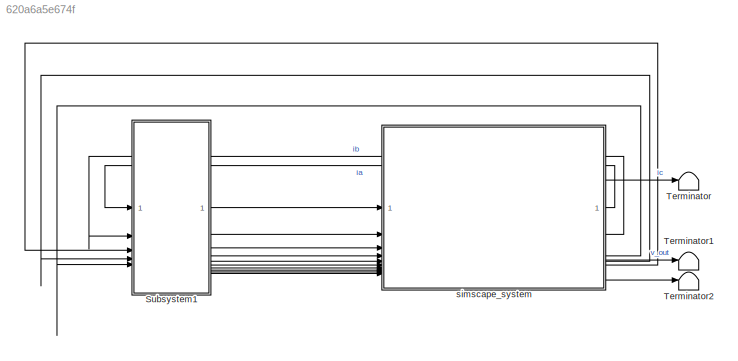
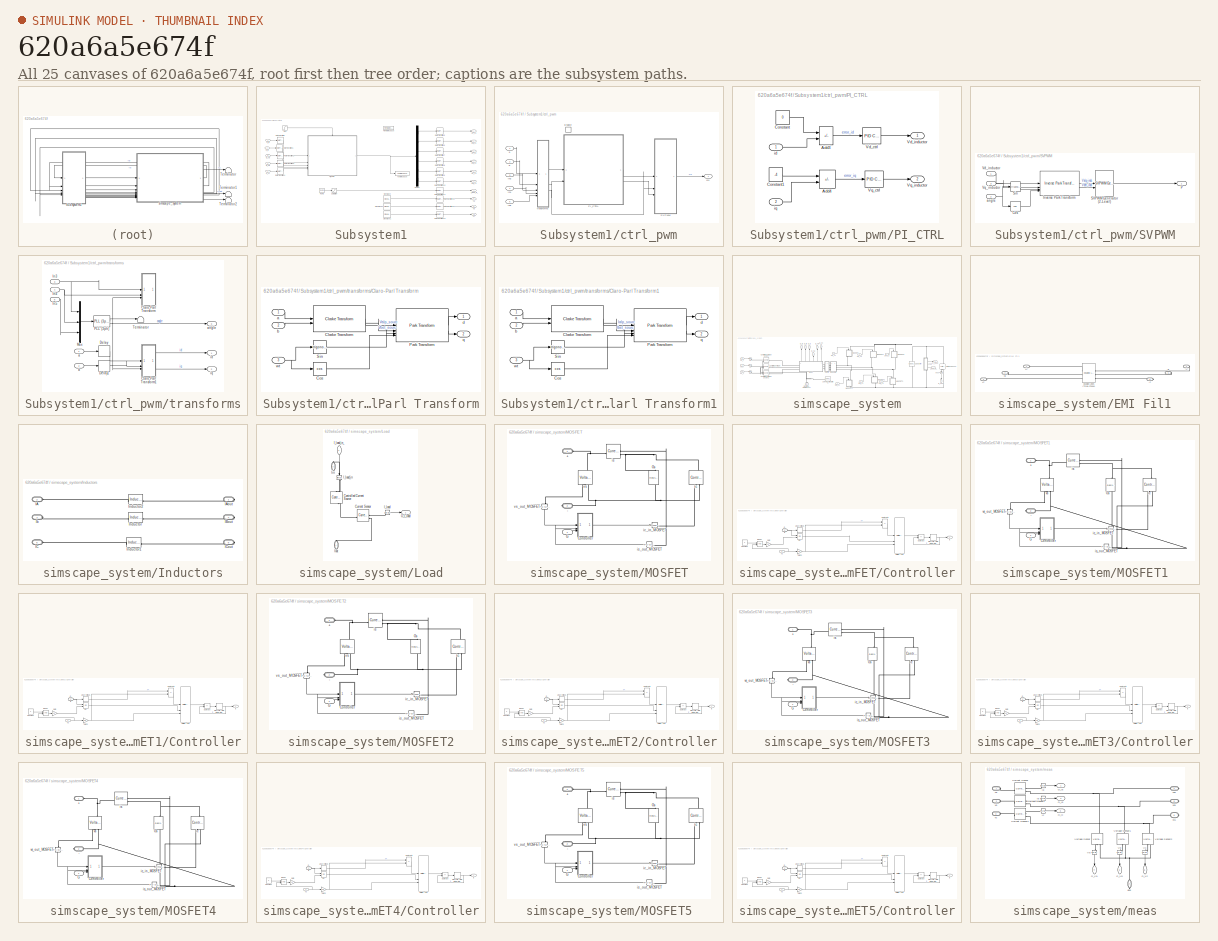
[diagram: thumbnail index - all 25 canvases of the model, root first then tree order]
MODEL slx_620a6a5e674f
KIND model
CONFIG AbsTol = auto
CONFIG EnableMultiTasking = off
CONFIG FixedStep = auto
CONFIG InitFcn = fidelity_pfc_vals;
CONFIG MaxStep = auto
CONFIG MinStep = auto
CONFIG RelTol = 1e-3
CONFIG SampleTimeConstraint = Unconstrained
CONFIG SolverName = FixedStepDiscrete
CONFIG StartTime = 0.0
CONFIG StopTime = .4
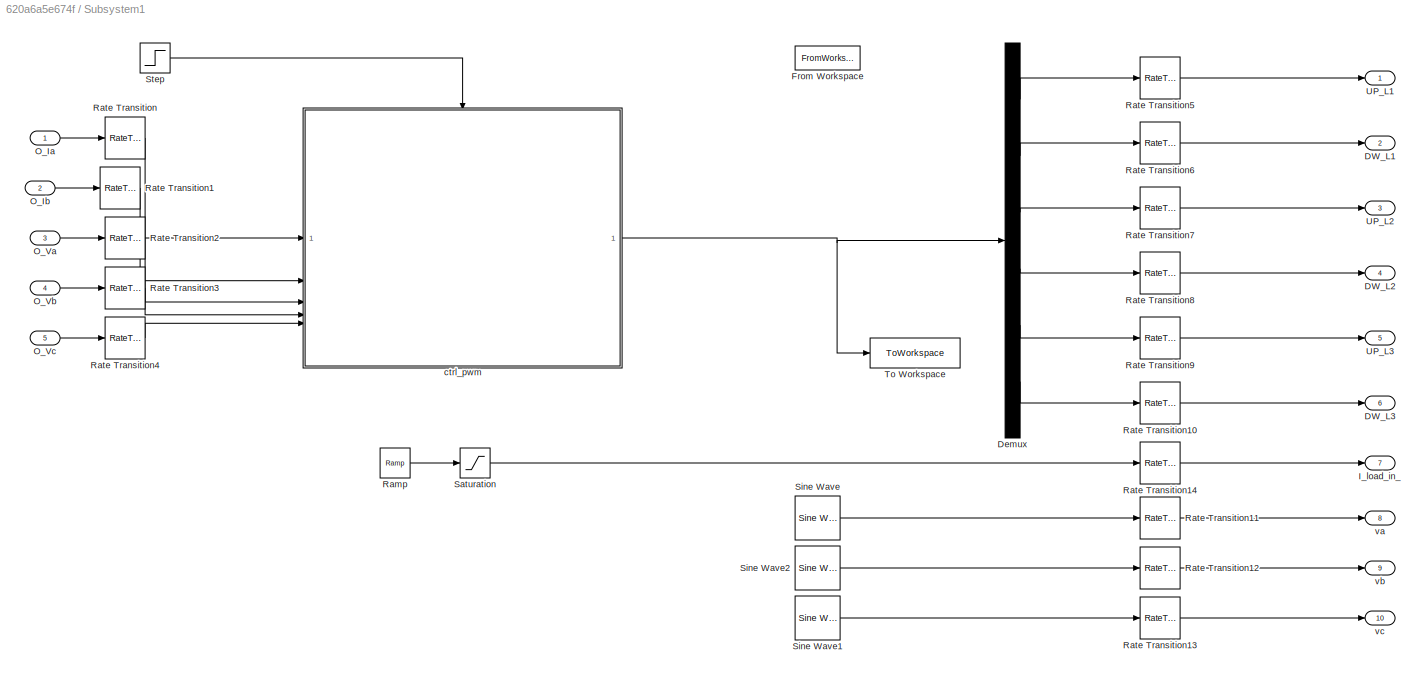
BLOCK [SubSystem] Subsystem1
BLOCK [Outport] Subsystem1/DW_L1
  Port = 2
BLOCK [Outport] Subsystem1/DW_L2
  Port = 4
BLOCK [Outport] Subsystem1/DW_L3
  Port = 6
BLOCK [Demux] Subsystem1/Demux
  Outputs = 6
BLOCK [FromWorkspace] Subsystem1/From Workspace
  Commented = on
  Interpolate = off
  OutputAfterFinalValue = Holding final value
  SampleTime = t_ss
  VariableName = pwm
  ZeroCross = off
BLOCK [Outport] Subsystem1/I_load_in_
  Port = 7
BLOCK [Inport] Subsystem1/O_Ia
BLOCK [Inport] Subsystem1/O_Ib
  Port = 2
BLOCK [Inport] Subsystem1/O_Va
  Port = 3
BLOCK [Inport] Subsystem1/O_Vb
  Port = 4
BLOCK [Inport] Subsystem1/O_Vc
  Port = 5
BLOCK [Reference] Subsystem1/Ramp  REF=simulink/Sources/Ramp
  SourceBlock = simulink/Sources/Ramp
  SourceType = Ramp
BLOCK [RateTransition] Subsystem1/Rate Transition
  OutPortSampleTime = t_ss
BLOCK [RateTransition] Subsystem1/Rate Transition1
  OutPortSampleTime = t_ss
BLOCK [RateTransition] Subsystem1/Rate Transition10
BLOCK [RateTransition] Subsystem1/Rate Transition11
BLOCK [RateTransition] Subsystem1/Rate Transition12
BLOCK [RateTransition] Subsystem1/Rate Transition13
BLOCK [RateTransition] Subsystem1/Rate Transition14
  OutPortSampleTime = t_ss
BLOCK [RateTransition] Subsystem1/Rate Transition2
  OutPortSampleTime = t_ss
BLOCK [RateTransition] Subsystem1/Rate Transition3
  OutPortSampleTime = t_ss
BLOCK [RateTransition] Subsystem1/Rate Transition4
  OutPortSampleTime = t_ss
BLOCK [RateTransition] Subsystem1/Rate Transition5
BLOCK [RateTransition] Subsystem1/Rate Transition6
BLOCK [RateTransition] Subsystem1/Rate Transition7
BLOCK [RateTransition] Subsystem1/Rate Transition8
BLOCK [RateTransition] Subsystem1/Rate Transition9
BLOCK [Saturate] Subsystem1/Saturation
  UpperLimit = 2
BLOCK [Reference] Subsystem1/Sine Wave  REF=dspsrcs4/Sine Wave
  LibrarySourceBlock = dsphdlsupportsrcs/Sine Wave
  SourceBlock = dspsrcs4/Sine Wave
  SourceType = Sine Wave
BLOCK [Reference] Subsystem1/Sine Wave1  REF=dspsrcs4/Sine Wave
  LibrarySourceBlock = dsphdlsupportsrcs/Sine Wave
  SourceBlock = dspsrcs4/Sine Wave
  SourceType = Sine Wave
BLOCK [Reference] Subsystem1/Sine Wave2  REF=dspsrcs4/Sine Wave
  LibrarySourceBlock = dsphdlsupportsrcs/Sine Wave
  SourceBlock = dspsrcs4/Sine Wave
  SourceType = Sine Wave
BLOCK [Step] Subsystem1/Step
  SampleTime = 0
  Time = 2/50
BLOCK [ToWorkspace] Subsystem1/To Workspace
  FixptAsFi = on
  MaxDataPoints = inf
  SampleTime = -1
  SaveFormat = Timeseries
  VariableName = pwm
BLOCK [Outport] Subsystem1/UP_L1
BLOCK [Outport] Subsystem1/UP_L2
  Port = 3
BLOCK [Outport] Subsystem1/UP_L3
  Port = 5
BLOCK [SubSystem] Subsystem1/ctrl_pwm
BLOCK [EnablePort] Subsystem1/ctrl_pwm/Enable
BLOCK [Inport] Subsystem1/ctrl_pwm/In3
  Port = 3
BLOCK [Inport] Subsystem1/ctrl_pwm/In4
  Port = 4
BLOCK [Inport] Subsystem1/ctrl_pwm/In5
  Port = 5
BLOCK [SubSystem] Subsystem1/ctrl_pwm/PI_CTRL
BLOCK [Sum] Subsystem1/ctrl_pwm/PI_CTRL/Add3
  IconShape = rectangular
  Inputs = +-
BLOCK [Sum] Subsystem1/ctrl_pwm/PI_CTRL/Add4
  IconShape = rectangular
  Inputs = +-
BLOCK [Constant] Subsystem1/ctrl_pwm/PI_CTRL/Constant
  SampleTime = t_ss
  Value = 0
BLOCK [Constant] Subsystem1/ctrl_pwm/PI_CTRL/Constant1
  SampleTime = t_ss
  Value = -4
BLOCK [Reference] Subsystem1/ctrl_pwm/PI_CTRL/Vd_ctrl  REF=slpidlib/PID Controller
  SourceBlock = slpidlib/PID Controller
  SourceType = PID 1dof
BLOCK [Outport] Subsystem1/ctrl_pwm/PI_CTRL/Vd_inductor
BLOCK [Reference] Subsystem1/ctrl_pwm/PI_CTRL/Vq_ctrl  REF=slpidlib/PID Controller
  SourceBlock = slpidlib/PID Controller
  SourceType = PID 1dof
BLOCK [Outport] Subsystem1/ctrl_pwm/PI_CTRL/Vq_inductor
  Port = 2
BLOCK [Inport] Subsystem1/ctrl_pwm/PI_CTRL/id
BLOCK [Inport] Subsystem1/ctrl_pwm/PI_CTRL/iq
  Port = 2
BLOCK [Outport] Subsystem1/ctrl_pwm/Qs
BLOCK [SubSystem] Subsystem1/ctrl_pwm/SVPWM
BLOCK [Trigonometry] Subsystem1/ctrl_pwm/SVPWM/Cos
  Operator = cos
BLOCK [Reference] Subsystem1/ctrl_pwm/SVPWM/Inverse Park Transform  REF=mcbcontrolslib/Inverse Park Transform
  SourceBlock = mcbcontrolslib/Inverse Park Transform
  SourceType = Inverse Park Transform
BLOCK [Outport] Subsystem1/ctrl_pwm/SVPWM/P
BLOCK [Reference] Subsystem1/ctrl_pwm/SVPWM/SVPWM Generator (2-Level)  REF=spsSVPWMGenerator2LevelLib/SVPWM Generator
(2-Level)
  SourceBlock = spsSVPWMGenerator2LevelLib/SVPWM Generator\n(2-Level)
  SourceType = SVPWM Generator (2-Level)
BLOCK [Trigonometry] Subsystem1/ctrl_pwm/SVPWM/Sin
BLOCK [Inport] Subsystem1/ctrl_pwm/SVPWM/Vd_inductor
BLOCK [Inport] Subsystem1/ctrl_pwm/SVPWM/Vq_inductor
  Port = 3
BLOCK [Inport] Subsystem1/ctrl_pwm/SVPWM/angle
  Port = 2
BLOCK [Inport] Subsystem1/ctrl_pwm/a
BLOCK [Inport] Subsystem1/ctrl_pwm/b
  Port = 2
BLOCK [SubSystem] Subsystem1/ctrl_pwm/transforms
BLOCK [SubSystem] Subsystem1/ctrl_pwm/transforms/Claro-Parl Transform
  Commented = on
BLOCK [Reference] Subsystem1/ctrl_pwm/transforms/Claro-Parl Transform/Clarke Transform  REF=mcbcontrolslib/Clarke Transform
  SourceBlock = mcbcontrolslib/Clarke Transform
  SourceType = Clarke Transform
BLOCK [Trigonometry] Subsystem1/ctrl_pwm/transforms/Claro-Parl Transform/Cos
  Operator = cos
BLOCK [Reference] Subsystem1/ctrl_pwm/transforms/Claro-Parl Transform/Park Transform  REF=mcbcontrolslib/Park Transform
  SourceBlock = mcbcontrolslib/Park Transform
  SourceType = Park Transform
BLOCK [Trigonometry] Subsystem1/ctrl_pwm/transforms/Claro-Parl Transform/Sin
BLOCK [Inport] Subsystem1/ctrl_pwm/transforms/Claro-Parl Transform/a
BLOCK [Inport] Subsystem1/ctrl_pwm/transforms/Claro-Parl Transform/b
  Port = 2
BLOCK [Outport] Subsystem1/ctrl_pwm/transforms/Claro-Parl Transform/d
BLOCK [Outport] Subsystem1/ctrl_pwm/transforms/Claro-Parl Transform/q
  Port = 2
BLOCK [Inport] Subsystem1/ctrl_pwm/transforms/Claro-Parl Transform/wt
  Port = 3
BLOCK [SubSystem] Subsystem1/ctrl_pwm/transforms/Claro-Parl Transform1
BLOCK [Reference] Subsystem1/ctrl_pwm/transforms/Claro-Parl Transform1/Clarke Transform  REF=mcbcontrolslib/Clarke Transform
  SourceBlock = mcbcontrolslib/Clarke Transform
  SourceType = Clarke Transform
BLOCK [Trigonometry] Subsystem1/ctrl_pwm/transforms/Claro-Parl Transform1/Cos
  Operator = cos
BLOCK [Reference] Subsystem1/ctrl_pwm/transforms/Claro-Parl Transform1/Park Transform  REF=mcbcontrolslib/Park Transform
  SourceBlock = mcbcontrolslib/Park Transform
  SourceType = Park Transform
BLOCK [Trigonometry] Subsystem1/ctrl_pwm/transforms/Claro-Parl Transform1/Sin
BLOCK [Inport] Subsystem1/ctrl_pwm/transforms/Claro-Parl Transform1/a
BLOCK [Inport] Subsystem1/ctrl_pwm/transforms/Claro-Parl Transform1/b
  Port = 2
BLOCK [Outport] Subsystem1/ctrl_pwm/transforms/Claro-Parl Transform1/d
BLOCK [Outport] Subsystem1/ctrl_pwm/transforms/Claro-Parl Transform1/q
  Port = 2
BLOCK [Inport] Subsystem1/ctrl_pwm/transforms/Claro-Parl Transform1/wt
  Port = 3
BLOCK [Delay] Subsystem1/ctrl_pwm/transforms/Delay
  DelayLength = 1
  InputPortMap = u0
BLOCK [Delay] Subsystem1/ctrl_pwm/transforms/Delay1
  DelayLength = 1
  InputPortMap = u0
BLOCK [Inport] Subsystem1/ctrl_pwm/transforms/In3
  Port = 3
BLOCK [Inport] Subsystem1/ctrl_pwm/transforms/In4
  Port = 4
BLOCK [Inport] Subsystem1/ctrl_pwm/transforms/In5
  Port = 5
BLOCK [Mux] Subsystem1/ctrl_pwm/transforms/Mux
  DisplayOption = bar
  Inputs = 3
BLOCK [Reference] Subsystem1/ctrl_pwm/transforms/PLL (3ph)  REF=spsPLL3phLib/PLL
(3ph)
  SourceBlock = spsPLL3phLib/PLL\n(3ph)
  SourceType = PLL (3ph)
BLOCK [Terminator] Subsystem1/ctrl_pwm/transforms/Terminator
BLOCK [Inport] Subsystem1/ctrl_pwm/transforms/a
BLOCK [Outport] Subsystem1/ctrl_pwm/transforms/angle
  Port = 3
BLOCK [Inport] Subsystem1/ctrl_pwm/transforms/b
  Port = 2
BLOCK [Outport] Subsystem1/ctrl_pwm/transforms/id
BLOCK [Outport] Subsystem1/ctrl_pwm/transforms/iq
  Port = 2
BLOCK [Outport] Subsystem1/va
  Port = 8
BLOCK [Outport] Subsystem1/vb
  Port = 9
BLOCK [Outport] Subsystem1/vc
  Port = 10
BLOCK [Terminator] Terminator
BLOCK [Terminator] Terminator1
BLOCK [Terminator] Terminator2
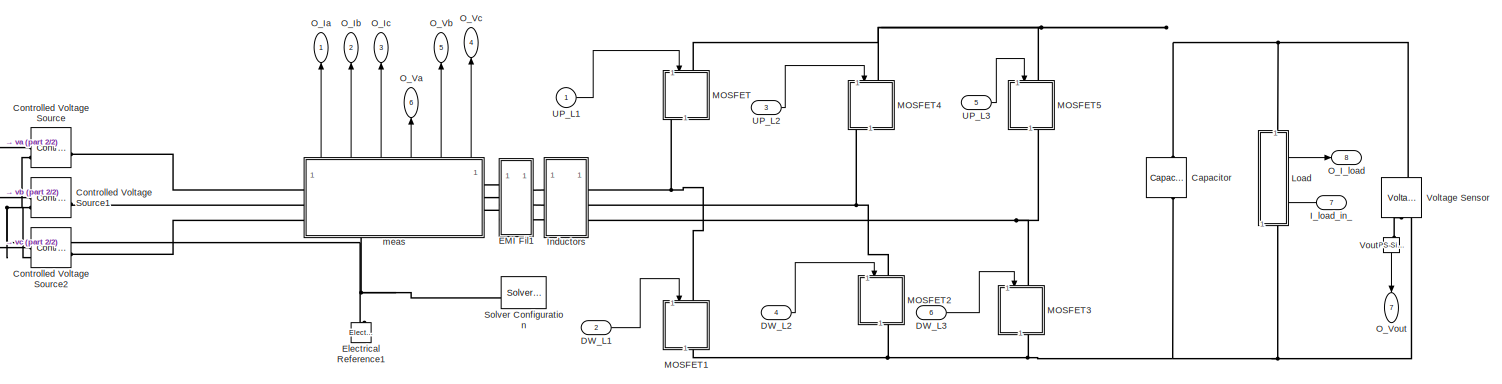
[diagram: simscape_system - part 1/2, most of the canvas]
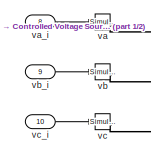
[diagram: simscape_system - part 2/2, middle left region]
BLOCK [SubSystem] simscape_system
BLOCK [Reference] simscape_system/Capacitor  REF=ee_lib/Passive/Capacitor
  NameLocation = left
  SourceBlock = ee_lib/Passive/Capacitor
  SourceType = Capacitor
BLOCK [Reference] simscape_system/Controlled Voltage Source  REF=fl_lib/Electrical/Electrical Sources/Controlled Voltage
Source
  SourceBlock = fl_lib/Electrical/Electrical Sources/Controlled Voltage\nSource
  SourceType = Controlled Voltage\nSource
BLOCK [Reference] simscape_system/Controlled Voltage Source1  REF=fl_lib/Electrical/Electrical Sources/Controlled Voltage
Source
  SourceBlock = fl_lib/Electrical/Electrical Sources/Controlled Voltage\nSource
  SourceType = Controlled Voltage\nSource
BLOCK [Reference] simscape_system/Controlled Voltage Source2  REF=fl_lib/Electrical/Electrical Sources/Controlled Voltage
Source
  SourceBlock = fl_lib/Electrical/Electrical Sources/Controlled Voltage\nSource
  SourceType = Controlled Voltage\nSource
BLOCK [Inport] simscape_system/DW_L1
  Port = 2
BLOCK [Inport] simscape_system/DW_L2
  Port = 4
BLOCK [Inport] simscape_system/DW_L3
  Port = 6
BLOCK [SubSystem] simscape_system/EMI Fil1
BLOCK [PMIOPort] simscape_system/EMI Fil1/+A
  Side = Left
BLOCK [PMIOPort] simscape_system/EMI Fil1/+B
  Port = 2
  Side = Left
BLOCK [PMIOPort] simscape_system/EMI Fil1/+C
  Port = 3
  Side = Left
BLOCK [PMIOPort] simscape_system/EMI Fil1/-A
  Port = 4
  Side = Right
BLOCK [PMIOPort] simscape_system/EMI Fil1/-B
  Port = 5
  Side = Right
BLOCK [PMIOPort] simscape_system/EMI Fil1/-C
  Port = 6
  Side = Right
BLOCK [Reference] simscape_system/EMI Fil1/Coupled Lines (Three-Phase)  REF=ee_lib/Passive/Lines/Coupled Lines
(Three-Phase)
  SourceBlock = ee_lib/Passive/Lines/Coupled Lines\n(Three-Phase)
  SourceType = Coupled Lines\n(Three-Phase)
BLOCK [Reference] simscape_system/Electrical Reference1  REF=fl_lib/Electrical/Electrical Elements/Electrical Reference
  NameLocation = right
  SourceBlock = fl_lib/Electrical/Electrical Elements/Electrical Reference
  SourceType = Electrical Reference
BLOCK [Inport] simscape_system/I_load_in_
  NameLocation = top
  Port = 7
BLOCK [SubSystem] simscape_system/Inductors
BLOCK [PMIOPort] simscape_system/Inductors/IA
  Port = 2
  Side = Left
BLOCK [PMIOPort] simscape_system/Inductors/IAout
  Side = Right
BLOCK [PMIOPort] simscape_system/Inductors/IBout
  Port = 4
  Side = Right
BLOCK [PMIOPort] simscape_system/Inductors/IC
  Port = 5
  Side = Left
BLOCK [PMIOPort] simscape_system/Inductors/ICout
  Port = 6
  Side = Right
BLOCK [PMIOPort] simscape_system/Inductors/Ib
  Port = 3
  Side = Left
BLOCK [Reference] simscape_system/Inductors/Inductor  REF=ee_lib/Passive/Inductor
  SourceBlock = ee_lib/Passive/Inductor
  SourceType = Inductor
BLOCK [Reference] simscape_system/Inductors/Inductor1  REF=ee_lib/Passive/Inductor
  SourceBlock = ee_lib/Passive/Inductor
  SourceType = Inductor
BLOCK [Reference] simscape_system/Inductors/Inductor2  REF=ee_lib/Passive/Inductor
  SourceBlock = ee_lib/Passive/Inductor
  SourceType = Inductor
BLOCK [SubSystem] simscape_system/Load
  NameLocation = right
  PortSchema = {"entries":[{"content":{"sides":[{"content":{"connectorIds":["LConn1"]},"type":"ConnectorPlacement.EquallySpacedRectSide","uuid":"effb2338-687f-46f5-a36d-064d1cdd1f89"},{"content":{"connectorIds":["RConn1"],"side":"RIGHT"},"type":"ConnectorPlacement.EquallySpacedRectSide","uuid":"901d8297-0f3f-4280-ade7-978b42e696ee"},{"content":{"side":"TOP"},"type":"ConnectorPlacement.EquallySpacedRectSide","uui...<+383ch>
BLOCK [Reference] simscape_system/Load/Controlled Current Source  REF=fl_lib/Electrical/Electrical Sources/Controlled Current
Source
  NameLocation = left
  SourceBlock = fl_lib/Electrical/Electrical Sources/Controlled Current\nSource
  SourceType = Controlled Current\nSource
BLOCK [Reference] simscape_system/Load/Current Sensor  REF=fl_lib/Electrical/Electrical Sensors/Current Sensor
  SourceBlock = fl_lib/Electrical/Electrical Sensors/Current Sensor
  SourceType = Current Sensor
BLOCK [Reference] simscape_system/Load/I_load  REF=nesl_utility/PS-Simulink
Converter
  SourceBlock = nesl_utility/PS-Simulink\nConverter
  SourceType = PS-Simulink\nConverter
BLOCK [Reference] simscape_system/Load/I_load_in  REF=nesl_utility/Simulink-PS
Converter
  NameLocation = left
  SourceBlock = nesl_utility/Simulink-PS\nConverter
  SourceType = Simulink-PS\nConverter
BLOCK [Inport] simscape_system/Load/I_load_in_
  NameLocation = left
BLOCK [PMIOPort] simscape_system/Load/Iin
  NameLocation = left
  Port = 2
  Side = Right
BLOCK [PMIOPort] simscape_system/Load/Iout
  NameLocation = right
  Side = Left
BLOCK [Outport] simscape_system/Load/O_I_load
BLOCK [SubSystem] simscape_system/MOSFET
  CopyFcn = set_param(gcb, 'LinkStatus', 'none');
  NameLocation = left
BLOCK [PMIOPort] simscape_system/MOSFET/+
  Side = Left
BLOCK [PMIOPort] simscape_system/MOSFET/-
  NameLocation = top
  Port = 2
  Side = Right
BLOCK [SubSystem] simscape_system/MOSFET/Controller
BLOCK [Constant] simscape_system/MOSFET/Controller/Constant
  SampleTime = -1
  Value = -.7
BLOCK [DiscreteIntegrator] simscape_system/MOSFET/Controller/Discrete-Time Integrator
  ICPrevOutput = DiscIntNeverNeededParam
  ICPrevScaledInput = DiscIntNeverNeededParam
  InitialConditionSetting = Auto
  IntegratorMethod = Accumulation: Forward Euler
  OutDataTypeStr = Inherit: Inherit via back propagation
  SampleTime = -1
  gainval = 1/s
BLOCK [RelationalOperator] simscape_system/MOSFET/Controller/Equal
  InputSameDT = off
  OutDataTypeStr = boolean
  RndMeth = Simplest
BLOCK [Inport] simscape_system/MOSFET/Controller/G
  Port = 3
BLOCK [Gain] simscape_system/MOSFET/Controller/Gain
  Gain = 10
BLOCK [Gain] simscape_system/MOSFET/Controller/Gain3
  Gain = Gs
  OutDataTypeStr = Inherit: Inherit via back propagation
BLOCK [Reference] simscape_system/MOSFET/Controller/Multiply-Add  REF=hdlsllib/HDL Operations/Multiply-Add
  LibrarySourceBlock = SimscapeFPGAHIL_lib/Linearized Switch Models/Switch/Controller/Switch State/Subcycle Average (Floating-Point)/Multiply-Add
  SourceBlock = hdlsllib/HDL Operations/Multiply-Add
  SourceType = Multiply-Add
BLOCK [Logic] simscape_system/MOSFET/Controller/OR
  AllPortsSameDT = off
  IconShape = distinctive
  Operator = OR
  OutDataTypeStr = boolean
BLOCK [Sum] simscape_system/MOSFET/Controller/Subtract
  IconShape = rectangular
  Inputs = +-
BLOCK [Sum] simscape_system/MOSFET/Controller/Subtract1
  IconShape = rectangular
  Inputs = +-
BLOCK [UnaryMinus] simscape_system/MOSFET/Controller/Unary Minus
BLOCK [Outport] simscape_system/MOSFET/Controller/ic
BLOCK [Inport] simscape_system/MOSFET/Controller/is
  NameLocation = top
  Port = 2
BLOCK [Inport] simscape_system/MOSFET/Controller/vs
BLOCK [Inport] simscape_system/MOSFET/G
BLOCK [Reference] simscape_system/MOSFET/Gs  REF=fl_lib/Electrical/Electrical Elements/Resistor
  NameLocation = right
  SourceBlock = fl_lib/Electrical/Electrical Elements/Resistor
  SourceType = Resistor
BLOCK [Reference] simscape_system/MOSFET/ic  REF=fl_lib/Electrical/Electrical Sources/Controlled Current
Source
  NameLocation = right
  SourceBlock = fl_lib/Electrical/Electrical Sources/Controlled Current\nSource
  SourceType = Controlled Current\nSource
BLOCK [Reference] simscape_system/MOSFET/ic_in_MOSFET  REF=nesl_utility/Simulink-PS
Converter
  SourceBlock = nesl_utility/Simulink-PS\nConverter
  SourceType = Simulink-PS\nConverter
BLOCK [Reference] simscape_system/MOSFET/is  REF=fl_lib/Electrical/Electrical Sensors/Current Sensor
  SourceBlock = fl_lib/Electrical/Electrical Sensors/Current Sensor
  SourceType = Current Sensor
BLOCK [Reference] simscape_system/MOSFET/is_out_MOSFET  REF=nesl_utility/PS-Simulink
Converter
  SourceBlock = nesl_utility/PS-Simulink\nConverter
  SourceType = PS-Simulink\nConverter
BLOCK [Reference] simscape_system/MOSFET/vs  REF=fl_lib/Electrical/Electrical Sensors/Voltage Sensor
  NameLocation = left
  SourceBlock = fl_lib/Electrical/Electrical Sensors/Voltage Sensor
  SourceType = Voltage Sensor
BLOCK [Reference] simscape_system/MOSFET/vs_out_MOSFET  REF=nesl_utility/PS-Simulink
Converter
  NameLocation = left
  SourceBlock = nesl_utility/PS-Simulink\nConverter
  SourceType = PS-Simulink\nConverter
BLOCK [SubSystem] simscape_system/MOSFET1
  CopyFcn = set_param(gcb, 'LinkStatus', 'none');
  NameLocation = left
BLOCK [PMIOPort] simscape_system/MOSFET1/+
  Side = Left
BLOCK [PMIOPort] simscape_system/MOSFET1/-
  NameLocation = top
  Port = 2
  Side = Right
BLOCK [SubSystem] simscape_system/MOSFET1/Controller
BLOCK [Constant] simscape_system/MOSFET1/Controller/Constant
  SampleTime = -1
  Value = -.7
BLOCK [DiscreteIntegrator] simscape_system/MOSFET1/Controller/Discrete-Time Integrator
  ICPrevOutput = DiscIntNeverNeededParam
  ICPrevScaledInput = DiscIntNeverNeededParam
  InitialConditionSetting = Auto
  IntegratorMethod = Accumulation: Forward Euler
  OutDataTypeStr = Inherit: Inherit via back propagation
  SampleTime = -1
  gainval = 1/s
BLOCK [RelationalOperator] simscape_system/MOSFET1/Controller/Equal
  InputSameDT = off
  OutDataTypeStr = boolean
  RndMeth = Simplest
BLOCK [Inport] simscape_system/MOSFET1/Controller/G
  Port = 3
BLOCK [Gain] simscape_system/MOSFET1/Controller/Gain
  Gain = 10
BLOCK [Gain] simscape_system/MOSFET1/Controller/Gain3
  Gain = Gs
  OutDataTypeStr = Inherit: Inherit via back propagation
BLOCK [Reference] simscape_system/MOSFET1/Controller/Multiply-Add  REF=hdlsllib/HDL Operations/Multiply-Add
  SourceBlock = hdlsllib/HDL Operations/Multiply-Add
  SourceType = Multiply-Add
BLOCK [Logic] simscape_system/MOSFET1/Controller/OR
  AllPortsSameDT = off
  IconShape = distinctive
  Operator = OR
  OutDataTypeStr = boolean
BLOCK [Sum] simscape_system/MOSFET1/Controller/Subtract
  IconShape = rectangular
  Inputs = +-
BLOCK [Sum] simscape_system/MOSFET1/Controller/Subtract1
  IconShape = rectangular
  Inputs = +-
BLOCK [UnaryMinus] simscape_system/MOSFET1/Controller/Unary Minus
BLOCK [Outport] simscape_system/MOSFET1/Controller/ic
BLOCK [Inport] simscape_system/MOSFET1/Controller/is
  NameLocation = top
  Port = 2
BLOCK [Inport] simscape_system/MOSFET1/Controller/vs
BLOCK [Inport] simscape_system/MOSFET1/G
BLOCK [Reference] simscape_system/MOSFET1/Gs  REF=fl_lib/Electrical/Electrical Elements/Resistor
  NameLocation = right
  SourceBlock = fl_lib/Electrical/Electrical Elements/Resistor
  SourceType = Resistor
BLOCK [Reference] simscape_system/MOSFET1/ic  REF=fl_lib/Electrical/Electrical Sources/Controlled Current
Source
  NameLocation = right
  SourceBlock = fl_lib/Electrical/Electrical Sources/Controlled Current\nSource
  SourceType = Controlled Current\nSource
BLOCK [Reference] simscape_system/MOSFET1/ic_in_MOSFET  REF=nesl_utility/Simulink-PS
Converter
  SourceBlock = nesl_utility/Simulink-PS\nConverter
  SourceType = Simulink-PS\nConverter
BLOCK [Reference] simscape_system/MOSFET1/is  REF=fl_lib/Electrical/Electrical Sensors/Current Sensor
  SourceBlock = fl_lib/Electrical/Electrical Sensors/Current Sensor
  SourceType = Current Sensor
BLOCK [Reference] simscape_system/MOSFET1/is_out_MOSFET  REF=nesl_utility/PS-Simulink
Converter
  SourceBlock = nesl_utility/PS-Simulink\nConverter
  SourceType = PS-Simulink\nConverter
BLOCK [Reference] simscape_system/MOSFET1/vs  REF=fl_lib/Electrical/Electrical Sensors/Voltage Sensor
  NameLocation = left
  SourceBlock = fl_lib/Electrical/Electrical Sensors/Voltage Sensor
  SourceType = Voltage Sensor
BLOCK [Reference] simscape_system/MOSFET1/vs_out_MOSFET  REF=nesl_utility/PS-Simulink
Converter
  NameLocation = left
  SourceBlock = nesl_utility/PS-Simulink\nConverter
  SourceType = PS-Simulink\nConverter
BLOCK [SubSystem] simscape_system/MOSFET2
  CopyFcn = set_param(gcb, 'LinkStatus', 'none');
  NameLocation = left
BLOCK [PMIOPort] simscape_system/MOSFET2/+
  Side = Left
BLOCK [PMIOPort] simscape_system/MOSFET2/-
  NameLocation = top
  Port = 2
  Side = Right
BLOCK [SubSystem] simscape_system/MOSFET2/Controller
BLOCK [Constant] simscape_system/MOSFET2/Controller/Constant
  SampleTime = -1
  Value = -.7
BLOCK [DiscreteIntegrator] simscape_system/MOSFET2/Controller/Discrete-Time Integrator
  ICPrevOutput = DiscIntNeverNeededParam
  ICPrevScaledInput = DiscIntNeverNeededParam
  InitialConditionSetting = Auto
  IntegratorMethod = Accumulation: Forward Euler
  OutDataTypeStr = Inherit: Inherit via back propagation
  SampleTime = -1
  gainval = 1/s
BLOCK [RelationalOperator] simscape_system/MOSFET2/Controller/Equal
  InputSameDT = off
  OutDataTypeStr = boolean
  RndMeth = Simplest
BLOCK [Inport] simscape_system/MOSFET2/Controller/G
  Port = 3
BLOCK [Gain] simscape_system/MOSFET2/Controller/Gain
  Gain = 10
BLOCK [Gain] simscape_system/MOSFET2/Controller/Gain3
  Gain = Gs
  OutDataTypeStr = Inherit: Inherit via back propagation
BLOCK [Reference] simscape_system/MOSFET2/Controller/Multiply-Add  REF=hdlsllib/HDL Operations/Multiply-Add
  SourceBlock = hdlsllib/HDL Operations/Multiply-Add
  SourceType = Multiply-Add
BLOCK [Logic] simscape_system/MOSFET2/Controller/OR
  AllPortsSameDT = off
  IconShape = distinctive
  Operator = OR
  OutDataTypeStr = boolean
BLOCK [Sum] simscape_system/MOSFET2/Controller/Subtract
  IconShape = rectangular
  Inputs = +-
BLOCK [Sum] simscape_system/MOSFET2/Controller/Subtract1
  IconShape = rectangular
  Inputs = +-
BLOCK [UnaryMinus] simscape_system/MOSFET2/Controller/Unary Minus
BLOCK [Outport] simscape_system/MOSFET2/Controller/ic
BLOCK [Inport] simscape_system/MOSFET2/Controller/is
  NameLocation = top
  Port = 2
BLOCK [Inport] simscape_system/MOSFET2/Controller/vs
BLOCK [Inport] simscape_system/MOSFET2/G
BLOCK [Reference] simscape_system/MOSFET2/Gs  REF=fl_lib/Electrical/Electrical Elements/Resistor
  NameLocation = right
  SourceBlock = fl_lib/Electrical/Electrical Elements/Resistor
  SourceType = Resistor
BLOCK [Reference] simscape_system/MOSFET2/ic  REF=fl_lib/Electrical/Electrical Sources/Controlled Current
Source
  NameLocation = right
  SourceBlock = fl_lib/Electrical/Electrical Sources/Controlled Current\nSource
  SourceType = Controlled Current\nSource
BLOCK [Reference] simscape_system/MOSFET2/ic_in_MOSFET  REF=nesl_utility/Simulink-PS
Converter
  SourceBlock = nesl_utility/Simulink-PS\nConverter
  SourceType = Simulink-PS\nConverter
BLOCK [Reference] simscape_system/MOSFET2/is  REF=fl_lib/Electrical/Electrical Sensors/Current Sensor
  SourceBlock = fl_lib/Electrical/Electrical Sensors/Current Sensor
  SourceType = Current Sensor
BLOCK [Reference] simscape_system/MOSFET2/is_out_MOSFET  REF=nesl_utility/PS-Simulink
Converter
  SourceBlock = nesl_utility/PS-Simulink\nConverter
  SourceType = PS-Simulink\nConverter
BLOCK [Reference] simscape_system/MOSFET2/vs  REF=fl_lib/Electrical/Electrical Sensors/Voltage Sensor
  NameLocation = left
  SourceBlock = fl_lib/Electrical/Electrical Sensors/Voltage Sensor
  SourceType = Voltage Sensor
BLOCK [Reference] simscape_system/MOSFET2/vs_out_MOSFET  REF=nesl_utility/PS-Simulink
Converter
  NameLocation = left
  SourceBlock = nesl_utility/PS-Simulink\nConverter
  SourceType = PS-Simulink\nConverter
BLOCK [SubSystem] simscape_system/MOSFET3
  CopyFcn = set_param(gcb, 'LinkStatus', 'none');
  NameLocation = left
BLOCK [PMIOPort] simscape_system/MOSFET3/+
  Side = Left
BLOCK [PMIOPort] simscape_system/MOSFET3/-
  NameLocation = top
  Port = 2
  Side = Right
BLOCK [SubSystem] simscape_system/MOSFET3/Controller
BLOCK [Constant] simscape_system/MOSFET3/Controller/Constant
  SampleTime = -1
  Value = -.7
BLOCK [DiscreteIntegrator] simscape_system/MOSFET3/Controller/Discrete-Time Integrator
  ICPrevOutput = DiscIntNeverNeededParam
  ICPrevScaledInput = DiscIntNeverNeededParam
  InitialConditionSetting = Auto
  IntegratorMethod = Accumulation: Forward Euler
  OutDataTypeStr = Inherit: Inherit via back propagation
  SampleTime = -1
  gainval = 1/s
BLOCK [RelationalOperator] simscape_system/MOSFET3/Controller/Equal
  InputSameDT = off
  OutDataTypeStr = boolean
  RndMeth = Simplest
BLOCK [Inport] simscape_system/MOSFET3/Controller/G
  Port = 3
BLOCK [Gain] simscape_system/MOSFET3/Controller/Gain
  Gain = 10
BLOCK [Gain] simscape_system/MOSFET3/Controller/Gain3
  Gain = Gs
  OutDataTypeStr = Inherit: Inherit via back propagation
BLOCK [Reference] simscape_system/MOSFET3/Controller/Multiply-Add  REF=hdlsllib/HDL Operations/Multiply-Add
  SourceBlock = hdlsllib/HDL Operations/Multiply-Add
  SourceType = Multiply-Add
BLOCK [Logic] simscape_system/MOSFET3/Controller/OR
  AllPortsSameDT = off
  IconShape = distinctive
  Operator = OR
  OutDataTypeStr = boolean
BLOCK [Sum] simscape_system/MOSFET3/Controller/Subtract
  IconShape = rectangular
  Inputs = +-
BLOCK [Sum] simscape_system/MOSFET3/Controller/Subtract1
  IconShape = rectangular
  Inputs = +-
BLOCK [UnaryMinus] simscape_system/MOSFET3/Controller/Unary Minus
BLOCK [Outport] simscape_system/MOSFET3/Controller/ic
BLOCK [Inport] simscape_system/MOSFET3/Controller/is
  NameLocation = top
  Port = 2
BLOCK [Inport] simscape_system/MOSFET3/Controller/vs
BLOCK [Inport] simscape_system/MOSFET3/G
BLOCK [Reference] simscape_system/MOSFET3/Gs  REF=fl_lib/Electrical/Electrical Elements/Resistor
  NameLocation = right
  SourceBlock = fl_lib/Electrical/Electrical Elements/Resistor
  SourceType = Resistor
BLOCK [Reference] simscape_system/MOSFET3/ic  REF=fl_lib/Electrical/Electrical Sources/Controlled Current
Source
  NameLocation = right
  SourceBlock = fl_lib/Electrical/Electrical Sources/Controlled Current\nSource
  SourceType = Controlled Current\nSource
BLOCK [Reference] simscape_system/MOSFET3/ic_in_MOSFET  REF=nesl_utility/Simulink-PS
Converter
  SourceBlock = nesl_utility/Simulink-PS\nConverter
  SourceType = Simulink-PS\nConverter
BLOCK [Reference] simscape_system/MOSFET3/is  REF=fl_lib/Electrical/Electrical Sensors/Current Sensor
  SourceBlock = fl_lib/Electrical/Electrical Sensors/Current Sensor
  SourceType = Current Sensor
BLOCK [Reference] simscape_system/MOSFET3/is_out_MOSFET  REF=nesl_utility/PS-Simulink
Converter
  SourceBlock = nesl_utility/PS-Simulink\nConverter
  SourceType = PS-Simulink\nConverter
BLOCK [Reference] simscape_system/MOSFET3/vs  REF=fl_lib/Electrical/Electrical Sensors/Voltage Sensor
  NameLocation = left
  SourceBlock = fl_lib/Electrical/Electrical Sensors/Voltage Sensor
  SourceType = Voltage Sensor
BLOCK [Reference] simscape_system/MOSFET3/vs_out_MOSFET  REF=nesl_utility/PS-Simulink
Converter
  NameLocation = left
  SourceBlock = nesl_utility/PS-Simulink\nConverter
  SourceType = PS-Simulink\nConverter
BLOCK [SubSystem] simscape_system/MOSFET4
  CopyFcn = set_param(gcb, 'LinkStatus', 'none');
  NameLocation = left
BLOCK [PMIOPort] simscape_system/MOSFET4/+
  Side = Left
BLOCK [PMIOPort] simscape_system/MOSFET4/-
  NameLocation = top
  Port = 2
  Side = Right
BLOCK [SubSystem] simscape_system/MOSFET4/Controller
BLOCK [Constant] simscape_system/MOSFET4/Controller/Constant
  SampleTime = -1
  Value = -.7
BLOCK [DiscreteIntegrator] simscape_system/MOSFET4/Controller/Discrete-Time Integrator
  ICPrevOutput = DiscIntNeverNeededParam
  ICPrevScaledInput = DiscIntNeverNeededParam
  InitialConditionSetting = Auto
  IntegratorMethod = Accumulation: Forward Euler
  OutDataTypeStr = Inherit: Inherit via back propagation
  SampleTime = -1
  gainval = 1/s
BLOCK [RelationalOperator] simscape_system/MOSFET4/Controller/Equal
  InputSameDT = off
  OutDataTypeStr = boolean
  RndMeth = Simplest
BLOCK [Inport] simscape_system/MOSFET4/Controller/G
  Port = 3
BLOCK [Gain] simscape_system/MOSFET4/Controller/Gain
  Gain = 10
BLOCK [Gain] simscape_system/MOSFET4/Controller/Gain3
  Gain = Gs
  OutDataTypeStr = Inherit: Inherit via back propagation
BLOCK [Reference] simscape_system/MOSFET4/Controller/Multiply-Add  REF=hdlsllib/HDL Operations/Multiply-Add
  SourceBlock = hdlsllib/HDL Operations/Multiply-Add
  SourceType = Multiply-Add
BLOCK [Logic] simscape_system/MOSFET4/Controller/OR
  AllPortsSameDT = off
  IconShape = distinctive
  Operator = OR
  OutDataTypeStr = boolean
BLOCK [Sum] simscape_system/MOSFET4/Controller/Subtract
  IconShape = rectangular
  Inputs = +-
BLOCK [Sum] simscape_system/MOSFET4/Controller/Subtract1
  IconShape = rectangular
  Inputs = +-
BLOCK [UnaryMinus] simscape_system/MOSFET4/Controller/Unary Minus
BLOCK [Outport] simscape_system/MOSFET4/Controller/ic
BLOCK [Inport] simscape_system/MOSFET4/Controller/is
  NameLocation = top
  Port = 2
BLOCK [Inport] simscape_system/MOSFET4/Controller/vs
BLOCK [Inport] simscape_system/MOSFET4/G
BLOCK [Reference] simscape_system/MOSFET4/Gs  REF=fl_lib/Electrical/Electrical Elements/Resistor
  NameLocation = right
  SourceBlock = fl_lib/Electrical/Electrical Elements/Resistor
  SourceType = Resistor
BLOCK [Reference] simscape_system/MOSFET4/ic  REF=fl_lib/Electrical/Electrical Sources/Controlled Current
Source
  NameLocation = right
  SourceBlock = fl_lib/Electrical/Electrical Sources/Controlled Current\nSource
  SourceType = Controlled Current\nSource
BLOCK [Reference] simscape_system/MOSFET4/ic_in_MOSFET  REF=nesl_utility/Simulink-PS
Converter
  SourceBlock = nesl_utility/Simulink-PS\nConverter
  SourceType = Simulink-PS\nConverter
BLOCK [Reference] simscape_system/MOSFET4/is  REF=fl_lib/Electrical/Electrical Sensors/Current Sensor
  SourceBlock = fl_lib/Electrical/Electrical Sensors/Current Sensor
  SourceType = Current Sensor
BLOCK [Reference] simscape_system/MOSFET4/is_out_MOSFET  REF=nesl_utility/PS-Simulink
Converter
  SourceBlock = nesl_utility/PS-Simulink\nConverter
  SourceType = PS-Simulink\nConverter
BLOCK [Reference] simscape_system/MOSFET4/vs  REF=fl_lib/Electrical/Electrical Sensors/Voltage Sensor
  NameLocation = left
  SourceBlock = fl_lib/Electrical/Electrical Sensors/Voltage Sensor
  SourceType = Voltage Sensor
BLOCK [Reference] simscape_system/MOSFET4/vs_out_MOSFET  REF=nesl_utility/PS-Simulink
Converter
  NameLocation = left
  SourceBlock = nesl_utility/PS-Simulink\nConverter
  SourceType = PS-Simulink\nConverter
BLOCK [SubSystem] simscape_system/MOSFET5
  CopyFcn = set_param(gcb, 'LinkStatus', 'none');
  NameLocation = left
BLOCK [PMIOPort] simscape_system/MOSFET5/+
  Side = Left
BLOCK [PMIOPort] simscape_system/MOSFET5/-
  NameLocation = top
  Port = 2
  Side = Right
BLOCK [SubSystem] simscape_system/MOSFET5/Controller
BLOCK [Constant] simscape_system/MOSFET5/Controller/Constant
  SampleTime = -1
  Value = -.7
BLOCK [DiscreteIntegrator] simscape_system/MOSFET5/Controller/Discrete-Time Integrator
  ICPrevOutput = DiscIntNeverNeededParam
  ICPrevScaledInput = DiscIntNeverNeededParam
  InitialConditionSetting = Auto
  IntegratorMethod = Accumulation: Forward Euler
  OutDataTypeStr = Inherit: Inherit via back propagation
  SampleTime = -1
  gainval = 1/s
BLOCK [RelationalOperator] simscape_system/MOSFET5/Controller/Equal
  InputSameDT = off
  OutDataTypeStr = boolean
  RndMeth = Simplest
BLOCK [Inport] simscape_system/MOSFET5/Controller/G
  Port = 3
BLOCK [Gain] simscape_system/MOSFET5/Controller/Gain
  Gain = 10
BLOCK [Gain] simscape_system/MOSFET5/Controller/Gain3
  Gain = Gs
  OutDataTypeStr = Inherit: Inherit via back propagation
BLOCK [Reference] simscape_system/MOSFET5/Controller/Multiply-Add  REF=hdlsllib/HDL Operations/Multiply-Add
  SourceBlock = hdlsllib/HDL Operations/Multiply-Add
  SourceType = Multiply-Add
BLOCK [Logic] simscape_system/MOSFET5/Controller/OR
  AllPortsSameDT = off
  IconShape = distinctive
  Operator = OR
  OutDataTypeStr = boolean
BLOCK [Sum] simscape_system/MOSFET5/Controller/Subtract
  IconShape = rectangular
  Inputs = +-
BLOCK [Sum] simscape_system/MOSFET5/Controller/Subtract1
  IconShape = rectangular
  Inputs = +-
BLOCK [UnaryMinus] simscape_system/MOSFET5/Controller/Unary Minus
BLOCK [Outport] simscape_system/MOSFET5/Controller/ic
BLOCK [Inport] simscape_system/MOSFET5/Controller/is
  NameLocation = top
  Port = 2
BLOCK [Inport] simscape_system/MOSFET5/Controller/vs
BLOCK [Inport] simscape_system/MOSFET5/G
BLOCK [Reference] simscape_system/MOSFET5/Gs  REF=fl_lib/Electrical/Electrical Elements/Resistor
  NameLocation = right
  SourceBlock = fl_lib/Electrical/Electrical Elements/Resistor
  SourceType = Resistor
BLOCK [Reference] simscape_system/MOSFET5/ic  REF=fl_lib/Electrical/Electrical Sources/Controlled Current
Source
  NameLocation = right
  SourceBlock = fl_lib/Electrical/Electrical Sources/Controlled Current\nSource
  SourceType = Controlled Current\nSource
BLOCK [Reference] simscape_system/MOSFET5/ic_in_MOSFET  REF=nesl_utility/Simulink-PS
Converter
  SourceBlock = nesl_utility/Simulink-PS\nConverter
  SourceType = Simulink-PS\nConverter
BLOCK [Reference] simscape_system/MOSFET5/is  REF=fl_lib/Electrical/Electrical Sensors/Current Sensor
  SourceBlock = fl_lib/Electrical/Electrical Sensors/Current Sensor
  SourceType = Current Sensor
BLOCK [Reference] simscape_system/MOSFET5/is_out_MOSFET  REF=nesl_utility/PS-Simulink
Converter
  SourceBlock = nesl_utility/PS-Simulink\nConverter
  SourceType = PS-Simulink\nConverter
BLOCK [Reference] simscape_system/MOSFET5/vs  REF=fl_lib/Electrical/Electrical Sensors/Voltage Sensor
  NameLocation = left
  SourceBlock = fl_lib/Electrical/Electrical Sensors/Voltage Sensor
  SourceType = Voltage Sensor
BLOCK [Reference] simscape_system/MOSFET5/vs_out_MOSFET  REF=nesl_utility/PS-Simulink
Converter
  NameLocation = left
  SourceBlock = nesl_utility/PS-Simulink\nConverter
  SourceType = PS-Simulink\nConverter
BLOCK [Outport] simscape_system/O_I_load
  Port = 8
BLOCK [Outport] simscape_system/O_Ia
  NameLocation = right
BLOCK [Outport] simscape_system/O_Ib
  NameLocation = right
  Port = 2
BLOCK [Outport] simscape_system/O_Ic
  NameLocation = right
  Port = 3
BLOCK [Outport] simscape_system/O_Va
  NameLocation = right
  Port = 6
BLOCK [Outport] simscape_system/O_Vb
  NameLocation = right
  Port = 5
BLOCK [Outport] simscape_system/O_Vc
  NameLocation = right
  Port = 4
BLOCK [Outport] simscape_system/O_Vout
  NameLocation = left
  Port = 7
BLOCK [Reference] simscape_system/Solver Configuration  REF=nesl_utility/Solver
Configuration
  NameLocation = top
  SourceBlock = nesl_utility/Solver\nConfiguration
  SourceType = Solver\nConfiguration
BLOCK [Inport] simscape_system/UP_L1
BLOCK [Inport] simscape_system/UP_L2
  Port = 3
BLOCK [Inport] simscape_system/UP_L3
  Port = 5
BLOCK [Reference] simscape_system/Voltage Sensor  REF=fl_lib/Electrical/Electrical Sensors/Voltage Sensor
  NameLocation = right
  SourceBlock = fl_lib/Electrical/Electrical Sensors/Voltage Sensor
  SourceType = Voltage Sensor
BLOCK [Reference] simscape_system/Vout  REF=nesl_utility/PS-Simulink
Converter
  NameLocation = left
  SourceBlock = nesl_utility/PS-Simulink\nConverter
  SourceType = PS-Simulink\nConverter
BLOCK [SubSystem] simscape_system/meas
  PortSchema = {"entries":[{"content":{"sides":[{"content":{"connectorIds":["LConn1","LConn2","LConn3"]},"type":"ConnectorPlacement.EquallySpacedRectSide","uuid":"63fb0446-2195-41ce-9f27-949cb83cb3c9"},{"content":{"connectorIds":["RConn1","RConn2","RConn3"],"side":"RIGHT"},"type":"ConnectorPlacement.EquallySpacedRectSide","uuid":"9968c418-1dbf-4d06-ba5c-e609e6b84d90"},{"content":{"connectorIds":["Out1","Out2","O...<+474ch>
BLOCK [Reference] simscape_system/meas/Current Sensor  REF=fl_lib/Electrical/Electrical Sensors/Current Sensor
  SourceBlock = fl_lib/Electrical/Electrical Sensors/Current Sensor
  SourceType = Current Sensor
BLOCK [Reference] simscape_system/meas/Current Sensor1  REF=fl_lib/Electrical/Electrical Sensors/Current Sensor
  SourceBlock = fl_lib/Electrical/Electrical Sensors/Current Sensor
  SourceType = Current Sensor
BLOCK [Reference] simscape_system/meas/Current Sensor2  REF=fl_lib/Electrical/Electrical Sensors/Current Sensor
  SourceBlock = fl_lib/Electrical/Electrical Sensors/Current Sensor
  SourceType = Current Sensor
BLOCK [Reference] simscape_system/meas/Ia  REF=nesl_utility/PS-Simulink
Converter
  SourceBlock = nesl_utility/PS-Simulink\nConverter
  SourceType = PS-Simulink\nConverter
BLOCK [Reference] simscape_system/meas/Ib  REF=nesl_utility/PS-Simulink
Converter
  SourceBlock = nesl_utility/PS-Simulink\nConverter
  SourceType = PS-Simulink\nConverter
BLOCK [Reference] simscape_system/meas/Ic  REF=nesl_utility/PS-Simulink
Converter
  SourceBlock = nesl_utility/PS-Simulink\nConverter
  SourceType = PS-Simulink\nConverter
BLOCK [Outport] simscape_system/meas/O_Ia
BLOCK [Outport] simscape_system/meas/O_Ib
  Port = 2
BLOCK [Outport] simscape_system/meas/O_Ic
  Port = 3
BLOCK [Outport] simscape_system/meas/O_Va
  NameLocation = left
  Port = 4
BLOCK [Outport] simscape_system/meas/O_Vb
  NameLocation = left
  Port = 5
BLOCK [Outport] simscape_system/meas/O_Vc
  NameLocation = left
  Port = 6
BLOCK [Reference] simscape_system/meas/Va  REF=nesl_utility/PS-Simulink
Converter
  NameLocation = left
  SourceBlock = nesl_utility/PS-Simulink\nConverter
  SourceType = PS-Simulink\nConverter
BLOCK [Reference] simscape_system/meas/Vb  REF=nesl_utility/PS-Simulink
Converter
  NameLocation = left
  SourceBlock = nesl_utility/PS-Simulink\nConverter
  SourceType = PS-Simulink\nConverter
BLOCK [Reference] simscape_system/meas/Vc  REF=nesl_utility/PS-Simulink
Converter
  NameLocation = left
  SourceBlock = nesl_utility/PS-Simulink\nConverter
  SourceType = PS-Simulink\nConverter
BLOCK [Reference] simscape_system/meas/Voltage Sensor  REF=fl_lib/Electrical/Electrical Sensors/Voltage Sensor
  NameLocation = right
  SourceBlock = fl_lib/Electrical/Electrical Sensors/Voltage Sensor
  SourceType = Voltage Sensor
BLOCK [Reference] simscape_system/meas/Voltage Sensor1  REF=fl_lib/Electrical/Electrical Sensors/Voltage Sensor
  NameLocation = right
  SourceBlock = fl_lib/Electrical/Electrical Sensors/Voltage Sensor
  SourceType = Voltage Sensor
BLOCK [Reference] simscape_system/meas/Voltage Sensor2  REF=fl_lib/Electrical/Electrical Sensors/Voltage Sensor
  NameLocation = right
  SourceBlock = fl_lib/Electrical/Electrical Sensors/Voltage Sensor
  SourceType = Voltage Sensor
BLOCK [PMIOPort] simscape_system/meas/gnd
  NameLocation = left
  Port = 7
  Side = Right
BLOCK [PMIOPort] simscape_system/meas/va
  Side = Left
BLOCK [PMIOPort] simscape_system/meas/va1
  NameLocation = top
  Port = 4
  Side = Right
BLOCK [PMIOPort] simscape_system/meas/vb
  Port = 2
  Side = Left
BLOCK [PMIOPort] simscape_system/meas/vb1
  NameLocation = top
  Port = 5
  Side = Right
BLOCK [PMIOPort] simscape_system/meas/vc
  Port = 3
  Side = Left
BLOCK [PMIOPort] simscape_system/meas/vc1
  NameLocation = top
  Port = 6
  Side = Right
BLOCK [Reference] simscape_system/va  REF=nesl_utility/Simulink-PS
Converter
  SourceBlock = nesl_utility/Simulink-PS\nConverter
  SourceType = Simulink-PS\nConverter
BLOCK [Inport] simscape_system/va_i
  Port = 8
BLOCK [Reference] simscape_system/vb  REF=nesl_utility/Simulink-PS
Converter
  SourceBlock = nesl_utility/Simulink-PS\nConverter
  SourceType = Simulink-PS\nConverter
BLOCK [Inport] simscape_system/vb_i
  Port = 9
BLOCK [Reference] simscape_system/vc  REF=nesl_utility/Simulink-PS
Converter
  SourceBlock = nesl_utility/Simulink-PS\nConverter
  SourceType = Simulink-PS\nConverter
BLOCK [Inport] simscape_system/vc_i
  Port = 10
LINE Subsystem1/Demux:1 -> Subsystem1/Rate Transition5:1
LINE Subsystem1/Demux:2 -> Subsystem1/Rate Transition6:1
LINE Subsystem1/Demux:3 -> Subsystem1/Rate Transition7:1
LINE Subsystem1/Demux:4 -> Subsystem1/Rate Transition8:1
LINE Subsystem1/Demux:5 -> Subsystem1/Rate Transition9:1
LINE Subsystem1/Demux:6 -> Subsystem1/Rate Transition10:1
LINE Subsystem1/O_Ia:1 -> Subsystem1/Rate Transition:1
LINE Subsystem1/O_Ib:1 -> Subsystem1/Rate Transition1:1
LINE Subsystem1/O_Va:1 -> Subsystem1/Rate Transition2:1
LINE Subsystem1/O_Vb:1 -> Subsystem1/Rate Transition3:1
LINE Subsystem1/O_Vc:1 -> Subsystem1/Rate Transition4:1
LINE Subsystem1/Ramp:1 -> Subsystem1/Saturation:1
LINE Subsystem1/Rate Transition10:1 -> Subsystem1/DW_L3:1
LINE Subsystem1/Rate Transition11:1 -> Subsystem1/va:1
LINE Subsystem1/Rate Transition12:1 -> Subsystem1/vb:1
LINE Subsystem1/Rate Transition13:1 -> Subsystem1/vc:1
LINE Subsystem1/Rate Transition14:1 -> Subsystem1/I_load_in_:1
LINE Subsystem1/Rate Transition1:1 -> Subsystem1/ctrl_pwm:2
LINE Subsystem1/Rate Transition2:1 -> Subsystem1/ctrl_pwm:3
LINE Subsystem1/Rate Transition3:1 -> Subsystem1/ctrl_pwm:4
LINE Subsystem1/Rate Transition4:1 -> Subsystem1/ctrl_pwm:5
LINE Subsystem1/Rate Transition5:1 -> Subsystem1/UP_L1:1
LINE Subsystem1/Rate Transition6:1 -> Subsystem1/DW_L1:1
LINE Subsystem1/Rate Transition7:1 -> Subsystem1/UP_L2:1
LINE Subsystem1/Rate Transition8:1 -> Subsystem1/DW_L2:1
LINE Subsystem1/Rate Transition9:1 -> Subsystem1/UP_L3:1
LINE Subsystem1/Rate Transition:1 -> Subsystem1/ctrl_pwm:1
LINE Subsystem1/Saturation:1 -> Subsystem1/Rate Transition14:1
LINE Subsystem1/Sine Wave1:1 -> Subsystem1/Rate Transition13:1
LINE Subsystem1/Sine Wave2:1 -> Subsystem1/Rate Transition12:1
LINE Subsystem1/Sine Wave:1 -> Subsystem1/Rate Transition11:1
LINE Subsystem1/Step:1 -> Subsystem1/ctrl_pwm:enable
LINE Subsystem1/ctrl_pwm/In3:1 -> Subsystem1/ctrl_pwm/transforms:3
LINE Subsystem1/ctrl_pwm/In4:1 -> Subsystem1/ctrl_pwm/transforms:4
LINE Subsystem1/ctrl_pwm/In5:1 -> Subsystem1/ctrl_pwm/transforms:5
LINE Subsystem1/ctrl_pwm/PI_CTRL/Add3:1 -> Subsystem1/ctrl_pwm/PI_CTRL/Vd_ctrl:1
LINE Subsystem1/ctrl_pwm/PI_CTRL/Add4:1 -> Subsystem1/ctrl_pwm/PI_CTRL/Vq_ctrl:1
LINE Subsystem1/ctrl_pwm/PI_CTRL/Constant1:1 -> Subsystem1/ctrl_pwm/PI_CTRL/Add4:1
LINE Subsystem1/ctrl_pwm/PI_CTRL/Constant:1 -> Subsystem1/ctrl_pwm/PI_CTRL/Add3:1
LINE Subsystem1/ctrl_pwm/PI_CTRL/Vd_ctrl:1 -> Subsystem1/ctrl_pwm/PI_CTRL/Vd_inductor:1
LINE Subsystem1/ctrl_pwm/PI_CTRL/Vq_ctrl:1 -> Subsystem1/ctrl_pwm/PI_CTRL/Vq_inductor:1
LINE Subsystem1/ctrl_pwm/PI_CTRL/id:1 -> Subsystem1/ctrl_pwm/PI_CTRL/Add3:2
LINE Subsystem1/ctrl_pwm/PI_CTRL/iq:1 -> Subsystem1/ctrl_pwm/PI_CTRL/Add4:2
LINE Subsystem1/ctrl_pwm/PI_CTRL:1 -> Subsystem1/ctrl_pwm/SVPWM:1
LINE Subsystem1/ctrl_pwm/PI_CTRL:2 -> Subsystem1/ctrl_pwm/SVPWM:3
LINE Subsystem1/ctrl_pwm/SVPWM/Cos:1 -> Subsystem1/ctrl_pwm/SVPWM/Inverse Park Transform:4
LINE Subsystem1/ctrl_pwm/SVPWM/Inverse Park Transform:1 -> Subsystem1/ctrl_pwm/SVPWM/SVPWM Generator (2-Level):1
LINE Subsystem1/ctrl_pwm/SVPWM/Inverse Park Transform:2 -> Subsystem1/ctrl_pwm/SVPWM/SVPWM Generator (2-Level):2
LINE Subsystem1/ctrl_pwm/SVPWM/SVPWM Generator (2-Level):1 -> Subsystem1/ctrl_pwm/SVPWM/P:1
LINE Subsystem1/ctrl_pwm/SVPWM/Sin:1 -> Subsystem1/ctrl_pwm/SVPWM/Inverse Park Transform:3
LINE Subsystem1/ctrl_pwm/SVPWM/Vd_inductor:1 -> Subsystem1/ctrl_pwm/SVPWM/Inverse Park Transform:1
LINE Subsystem1/ctrl_pwm/SVPWM/Vq_inductor:1 -> Subsystem1/ctrl_pwm/SVPWM/Inverse Park Transform:2
NET Subsystem1/ctrl_pwm/SVPWM/angle:1 -> Subsystem1/ctrl_pwm/SVPWM/Cos:1, Subsystem1/ctrl_pwm/SVPWM/Sin:1
LINE Subsystem1/ctrl_pwm/SVPWM:1 -> Subsystem1/ctrl_pwm/Qs:1
LINE Subsystem1/ctrl_pwm/a:1 -> Subsystem1/ctrl_pwm/transforms:1
LINE Subsystem1/ctrl_pwm/b:1 -> Subsystem1/ctrl_pwm/transforms:2
LINE Subsystem1/ctrl_pwm/transforms/Claro-Parl Transform/Clarke Transform:1 -> Subsystem1/ctrl_pwm/transforms/Claro-Parl Transform/Park Transform:1
LINE Subsystem1/ctrl_pwm/transforms/Claro-Parl Transform/Clarke Transform:2 -> Subsystem1/ctrl_pwm/transforms/Claro-Parl Transform/Park Transform:2
LINE Subsystem1/ctrl_pwm/transforms/Claro-Parl Transform/Cos:1 -> Subsystem1/ctrl_pwm/transforms/Claro-Parl Transform/Park Transform:4
LINE Subsystem1/ctrl_pwm/transforms/Claro-Parl Transform/Park Transform:1 -> Subsystem1/ctrl_pwm/transforms/Claro-Parl Transform/d:1
LINE Subsystem1/ctrl_pwm/transforms/Claro-Parl Transform/Park Transform:2 -> Subsystem1/ctrl_pwm/transforms/Claro-Parl Transform/q:1
LINE Subsystem1/ctrl_pwm/transforms/Claro-Parl Transform/Sin:1 -> Subsystem1/ctrl_pwm/transforms/Claro-Parl Transform/Park Transform:3
LINE Subsystem1/ctrl_pwm/transforms/Claro-Parl Transform/a:1 -> Subsystem1/ctrl_pwm/transforms/Claro-Parl Transform/Clarke Transform:1
LINE Subsystem1/ctrl_pwm/transforms/Claro-Parl Transform/b:1 -> Subsystem1/ctrl_pwm/transforms/Claro-Parl Transform/Clarke Transform:2
NET Subsystem1/ctrl_pwm/transforms/Claro-Parl Transform/wt:1 -> Subsystem1/ctrl_pwm/transforms/Claro-Parl Transform/Cos:1, Subsystem1/ctrl_pwm/transforms/Claro-Parl Transform/Sin:1
LINE Subsystem1/ctrl_pwm/transforms/Claro-Parl Transform1/Clarke Transform:1 -> Subsystem1/ctrl_pwm/transforms/Claro-Parl Transform1/Park Transform:1
LINE Subsystem1/ctrl_pwm/transforms/Claro-Parl Transform1/Clarke Transform:2 -> Subsystem1/ctrl_pwm/transforms/Claro-Parl Transform1/Park Transform:2
LINE Subsystem1/ctrl_pwm/transforms/Claro-Parl Transform1/Cos:1 -> Subsystem1/ctrl_pwm/transforms/Claro-Parl Transform1/Park Transform:4
LINE Subsystem1/ctrl_pwm/transforms/Claro-Parl Transform1/Park Transform:1 -> Subsystem1/ctrl_pwm/transforms/Claro-Parl Transform1/d:1
LINE Subsystem1/ctrl_pwm/transforms/Claro-Parl Transform1/Park Transform:2 -> Subsystem1/ctrl_pwm/transforms/Claro-Parl Transform1/q:1
LINE Subsystem1/ctrl_pwm/transforms/Claro-Parl Transform1/Sin:1 -> Subsystem1/ctrl_pwm/transforms/Claro-Parl Transform1/Park Transform:3
LINE Subsystem1/ctrl_pwm/transforms/Claro-Parl Transform1/a:1 -> Subsystem1/ctrl_pwm/transforms/Claro-Parl Transform1/Clarke Transform:1
LINE Subsystem1/ctrl_pwm/transforms/Claro-Parl Transform1/b:1 -> Subsystem1/ctrl_pwm/transforms/Claro-Parl Transform1/Clarke Transform:2
NET Subsystem1/ctrl_pwm/transforms/Claro-Parl Transform1/wt:1 -> Subsystem1/ctrl_pwm/transforms/Claro-Parl Transform1/Cos:1, Subsystem1/ctrl_pwm/transforms/Claro-Parl Transform1/Sin:1
LINE Subsystem1/ctrl_pwm/transforms/Claro-Parl Transform1:1 -> Subsystem1/ctrl_pwm/transforms/id:1
LINE Subsystem1/ctrl_pwm/transforms/Claro-Parl Transform1:2 -> Subsystem1/ctrl_pwm/transforms/iq:1
LINE Subsystem1/ctrl_pwm/transforms/Delay1:1 -> Subsystem1/ctrl_pwm/transforms/Claro-Parl Transform1:2
LINE Subsystem1/ctrl_pwm/transforms/Delay:1 -> Subsystem1/ctrl_pwm/transforms/Claro-Parl Transform1:1
NET Subsystem1/ctrl_pwm/transforms/In3:1 -> Subsystem1/ctrl_pwm/transforms/Claro-Parl Transform:1, Subsystem1/ctrl_pwm/transforms/Mux:1
NET Subsystem1/ctrl_pwm/transforms/In4:1 -> Subsystem1/ctrl_pwm/transforms/Claro-Parl Transform:2, Subsystem1/ctrl_pwm/transforms/Mux:2
LINE Subsystem1/ctrl_pwm/transforms/In5:1 -> Subsystem1/ctrl_pwm/transforms/Mux:3
LINE Subsystem1/ctrl_pwm/transforms/Mux:1 -> Subsystem1/ctrl_pwm/transforms/PLL (3ph):1
LINE Subsystem1/ctrl_pwm/transforms/PLL (3ph):1 -> Subsystem1/ctrl_pwm/transforms/Terminator:1
NET Subsystem1/ctrl_pwm/transforms/PLL (3ph):2 -> Subsystem1/ctrl_pwm/transforms/Claro-Parl Transform1:3, Subsystem1/ctrl_pwm/transforms/Claro-Parl Transform:3, Subsystem1/ctrl_pwm/transforms/angle:1
LINE Subsystem1/ctrl_pwm/transforms/a:1 -> Subsystem1/ctrl_pwm/transforms/Delay:1
LINE Subsystem1/ctrl_pwm/transforms/b:1 -> Subsystem1/ctrl_pwm/transforms/Delay1:1
LINE Subsystem1/ctrl_pwm/transforms:1 -> Subsystem1/ctrl_pwm/PI_CTRL:1
LINE Subsystem1/ctrl_pwm/transforms:2 -> Subsystem1/ctrl_pwm/PI_CTRL:2
LINE Subsystem1/ctrl_pwm/transforms:3 -> Subsystem1/ctrl_pwm/SVPWM:2
NET Subsystem1/ctrl_pwm:1 -> Subsystem1/Demux:1, Subsystem1/To Workspace:1
LINE Subsystem1:1 -> simscape_system:1
LINE Subsystem1:10 -> simscape_system:10
LINE Subsystem1:2 -> simscape_system:2
LINE Subsystem1:3 -> simscape_system:3
LINE Subsystem1:4 -> simscape_system:4
LINE Subsystem1:5 -> simscape_system:5
LINE Subsystem1:6 -> simscape_system:6
LINE Subsystem1:7 -> simscape_system:7
LINE Subsystem1:8 -> simscape_system:8
LINE Subsystem1:9 -> simscape_system:9
LINE simscape_system/DW_L1:1 -> simscape_system/MOSFET1:1
LINE simscape_system/DW_L2:1 -> simscape_system/MOSFET2:1
LINE simscape_system/DW_L3:1 -> simscape_system/MOSFET3:1
LINE simscape_system/I_load_in_:1 -> simscape_system/Load:1
LINE simscape_system/Load/I_load:1 -> simscape_system/Load/O_I_load:1
LINE simscape_system/Load/I_load_in_:1 -> simscape_system/Load/I_load_in:1
LINE simscape_system/Load:1 -> simscape_system/O_I_load:1
LINE simscape_system/MOSFET/Controller/Constant:1 -> simscape_system/MOSFET/Controller/Equal:1
NET simscape_system/MOSFET/Controller/Discrete-Time Integrator:1 -> simscape_system/MOSFET/Controller/Subtract:2, simscape_system/MOSFET/Controller/ic:1
LINE simscape_system/MOSFET/Controller/Equal:1 -> simscape_system/MOSFET/Controller/Gain:1
LINE simscape_system/MOSFET/Controller/G:1 -> simscape_system/MOSFET/Controller/OR:1
NET simscape_system/MOSFET/Controller/Gain3:1 -> simscape_system/MOSFET/Controller/Multiply-Add:3, simscape_system/MOSFET/Controller/Subtract1:2
LINE simscape_system/MOSFET/Controller/Gain:1 -> simscape_system/MOSFET/Controller/OR:2
LINE simscape_system/MOSFET/Controller/Multiply-Add:1 -> simscape_system/MOSFET/Controller/Subtract:1
LINE simscape_system/MOSFET/Controller/OR:1 -> simscape_system/MOSFET/Controller/Multiply-Add:2
LINE simscape_system/MOSFET/Controller/Subtract1:1 -> simscape_system/MOSFET/Controller/Multiply-Add:1
LINE simscape_system/MOSFET/Controller/Subtract:1 -> simscape_system/MOSFET/Controller/Discrete-Time Integrator:1
LINE simscape_system/MOSFET/Controller/Unary Minus:1 -> simscape_system/MOSFET/Controller/Subtract1:1
LINE simscape_system/MOSFET/Controller/is:1 -> simscape_system/MOSFET/Controller/Unary Minus:1
NET simscape_system/MOSFET/Controller/vs:1 -> simscape_system/MOSFET/Controller/Equal:2, simscape_system/MOSFET/Controller/Gain3:1
LINE simscape_system/MOSFET/Controller:1 -> simscape_system/MOSFET/ic_in_MOSFET:1
LINE simscape_system/MOSFET/G:1 -> simscape_system/MOSFET/Controller:3
LINE simscape_system/MOSFET/is_out_MOSFET:1 -> simscape_system/MOSFET/Controller:2
LINE simscape_system/MOSFET/vs_out_MOSFET:1 -> simscape_system/MOSFET/Controller:1
LINE simscape_system/MOSFET1/Controller/Constant:1 -> simscape_system/MOSFET1/Controller/Equal:1
NET simscape_system/MOSFET1/Controller/Discrete-Time Integrator:1 -> simscape_system/MOSFET1/Controller/Subtract:2, simscape_system/MOSFET1/Controller/ic:1
LINE simscape_system/MOSFET1/Controller/Equal:1 -> simscape_system/MOSFET1/Controller/Gain:1
LINE simscape_system/MOSFET1/Controller/G:1 -> simscape_system/MOSFET1/Controller/OR:1
NET simscape_system/MOSFET1/Controller/Gain3:1 -> simscape_system/MOSFET1/Controller/Multiply-Add:3, simscape_system/MOSFET1/Controller/Subtract1:2
LINE simscape_system/MOSFET1/Controller/Gain:1 -> simscape_system/MOSFET1/Controller/OR:2
LINE simscape_system/MOSFET1/Controller/Multiply-Add:1 -> simscape_system/MOSFET1/Controller/Subtract:1
LINE simscape_system/MOSFET1/Controller/OR:1 -> simscape_system/MOSFET1/Controller/Multiply-Add:2
LINE simscape_system/MOSFET1/Controller/Subtract1:1 -> simscape_system/MOSFET1/Controller/Multiply-Add:1
LINE simscape_system/MOSFET1/Controller/Subtract:1 -> simscape_system/MOSFET1/Controller/Discrete-Time Integrator:1
LINE simscape_system/MOSFET1/Controller/Unary Minus:1 -> simscape_system/MOSFET1/Controller/Subtract1:1
LINE simscape_system/MOSFET1/Controller/is:1 -> simscape_system/MOSFET1/Controller/Unary Minus:1
NET simscape_system/MOSFET1/Controller/vs:1 -> simscape_system/MOSFET1/Controller/Equal:2, simscape_system/MOSFET1/Controller/Gain3:1
LINE simscape_system/MOSFET1/Controller:1 -> simscape_system/MOSFET1/ic_in_MOSFET:1
LINE simscape_system/MOSFET1/G:1 -> simscape_system/MOSFET1/Controller:3
LINE simscape_system/MOSFET1/is_out_MOSFET:1 -> simscape_system/MOSFET1/Controller:2
LINE simscape_system/MOSFET1/vs_out_MOSFET:1 -> simscape_system/MOSFET1/Controller:1
LINE simscape_system/MOSFET2/Controller/Constant:1 -> simscape_system/MOSFET2/Controller/Equal:1
NET simscape_system/MOSFET2/Controller/Discrete-Time Integrator:1 -> simscape_system/MOSFET2/Controller/Subtract:2, simscape_system/MOSFET2/Controller/ic:1
LINE simscape_system/MOSFET2/Controller/Equal:1 -> simscape_system/MOSFET2/Controller/Gain:1
LINE simscape_system/MOSFET2/Controller/G:1 -> simscape_system/MOSFET2/Controller/OR:1
NET simscape_system/MOSFET2/Controller/Gain3:1 -> simscape_system/MOSFET2/Controller/Multiply-Add:3, simscape_system/MOSFET2/Controller/Subtract1:2
LINE simscape_system/MOSFET2/Controller/Gain:1 -> simscape_system/MOSFET2/Controller/OR:2
LINE simscape_system/MOSFET2/Controller/Multiply-Add:1 -> simscape_system/MOSFET2/Controller/Subtract:1
LINE simscape_system/MOSFET2/Controller/OR:1 -> simscape_system/MOSFET2/Controller/Multiply-Add:2
LINE simscape_system/MOSFET2/Controller/Subtract1:1 -> simscape_system/MOSFET2/Controller/Multiply-Add:1
LINE simscape_system/MOSFET2/Controller/Subtract:1 -> simscape_system/MOSFET2/Controller/Discrete-Time Integrator:1
LINE simscape_system/MOSFET2/Controller/Unary Minus:1 -> simscape_system/MOSFET2/Controller/Subtract1:1
LINE simscape_system/MOSFET2/Controller/is:1 -> simscape_system/MOSFET2/Controller/Unary Minus:1
NET simscape_system/MOSFET2/Controller/vs:1 -> simscape_system/MOSFET2/Controller/Equal:2, simscape_system/MOSFET2/Controller/Gain3:1
LINE simscape_system/MOSFET2/Controller:1 -> simscape_system/MOSFET2/ic_in_MOSFET:1
LINE simscape_system/MOSFET2/G:1 -> simscape_system/MOSFET2/Controller:3
LINE simscape_system/MOSFET2/is_out_MOSFET:1 -> simscape_system/MOSFET2/Controller:2
LINE simscape_system/MOSFET2/vs_out_MOSFET:1 -> simscape_system/MOSFET2/Controller:1
LINE simscape_system/MOSFET3/Controller/Constant:1 -> simscape_system/MOSFET3/Controller/Equal:1
NET simscape_system/MOSFET3/Controller/Discrete-Time Integrator:1 -> simscape_system/MOSFET3/Controller/Subtract:2, simscape_system/MOSFET3/Controller/ic:1
LINE simscape_system/MOSFET3/Controller/Equal:1 -> simscape_system/MOSFET3/Controller/Gain:1
LINE simscape_system/MOSFET3/Controller/G:1 -> simscape_system/MOSFET3/Controller/OR:1
NET simscape_system/MOSFET3/Controller/Gain3:1 -> simscape_system/MOSFET3/Controller/Multiply-Add:3, simscape_system/MOSFET3/Controller/Subtract1:2
LINE simscape_system/MOSFET3/Controller/Gain:1 -> simscape_system/MOSFET3/Controller/OR:2
LINE simscape_system/MOSFET3/Controller/Multiply-Add:1 -> simscape_system/MOSFET3/Controller/Subtract:1
LINE simscape_system/MOSFET3/Controller/OR:1 -> simscape_system/MOSFET3/Controller/Multiply-Add:2
LINE simscape_system/MOSFET3/Controller/Subtract1:1 -> simscape_system/MOSFET3/Controller/Multiply-Add:1
LINE simscape_system/MOSFET3/Controller/Subtract:1 -> simscape_system/MOSFET3/Controller/Discrete-Time Integrator:1
LINE simscape_system/MOSFET3/Controller/Unary Minus:1 -> simscape_system/MOSFET3/Controller/Subtract1:1
LINE simscape_system/MOSFET3/Controller/is:1 -> simscape_system/MOSFET3/Controller/Unary Minus:1
NET simscape_system/MOSFET3/Controller/vs:1 -> simscape_system/MOSFET3/Controller/Equal:2, simscape_system/MOSFET3/Controller/Gain3:1
LINE simscape_system/MOSFET3/Controller:1 -> simscape_system/MOSFET3/ic_in_MOSFET:1
LINE simscape_system/MOSFET3/G:1 -> simscape_system/MOSFET3/Controller:3
LINE simscape_system/MOSFET3/is_out_MOSFET:1 -> simscape_system/MOSFET3/Controller:2
LINE simscape_system/MOSFET3/vs_out_MOSFET:1 -> simscape_system/MOSFET3/Controller:1
LINE simscape_system/MOSFET4/Controller/Constant:1 -> simscape_system/MOSFET4/Controller/Equal:1
NET simscape_system/MOSFET4/Controller/Discrete-Time Integrator:1 -> simscape_system/MOSFET4/Controller/Subtract:2, simscape_system/MOSFET4/Controller/ic:1
LINE simscape_system/MOSFET4/Controller/Equal:1 -> simscape_system/MOSFET4/Controller/Gain:1
LINE simscape_system/MOSFET4/Controller/G:1 -> simscape_system/MOSFET4/Controller/OR:1
NET simscape_system/MOSFET4/Controller/Gain3:1 -> simscape_system/MOSFET4/Controller/Multiply-Add:3, simscape_system/MOSFET4/Controller/Subtract1:2
LINE simscape_system/MOSFET4/Controller/Gain:1 -> simscape_system/MOSFET4/Controller/OR:2
LINE simscape_system/MOSFET4/Controller/Multiply-Add:1 -> simscape_system/MOSFET4/Controller/Subtract:1
LINE simscape_system/MOSFET4/Controller/OR:1 -> simscape_system/MOSFET4/Controller/Multiply-Add:2
LINE simscape_system/MOSFET4/Controller/Subtract1:1 -> simscape_system/MOSFET4/Controller/Multiply-Add:1
LINE simscape_system/MOSFET4/Controller/Subtract:1 -> simscape_system/MOSFET4/Controller/Discrete-Time Integrator:1
LINE simscape_system/MOSFET4/Controller/Unary Minus:1 -> simscape_system/MOSFET4/Controller/Subtract1:1
LINE simscape_system/MOSFET4/Controller/is:1 -> simscape_system/MOSFET4/Controller/Unary Minus:1
NET simscape_system/MOSFET4/Controller/vs:1 -> simscape_system/MOSFET4/Controller/Equal:2, simscape_system/MOSFET4/Controller/Gain3:1
LINE simscape_system/MOSFET4/Controller:1 -> simscape_system/MOSFET4/ic_in_MOSFET:1
LINE simscape_system/MOSFET4/G:1 -> simscape_system/MOSFET4/Controller:3
LINE simscape_system/MOSFET4/is_out_MOSFET:1 -> simscape_system/MOSFET4/Controller:2
LINE simscape_system/MOSFET4/vs_out_MOSFET:1 -> simscape_system/MOSFET4/Controller:1
LINE simscape_system/MOSFET5/Controller/Constant:1 -> simscape_system/MOSFET5/Controller/Equal:1
NET simscape_system/MOSFET5/Controller/Discrete-Time Integrator:1 -> simscape_system/MOSFET5/Controller/Subtract:2, simscape_system/MOSFET5/Controller/ic:1
LINE simscape_system/MOSFET5/Controller/Equal:1 -> simscape_system/MOSFET5/Controller/Gain:1
LINE simscape_system/MOSFET5/Controller/G:1 -> simscape_system/MOSFET5/Controller/OR:1
NET simscape_system/MOSFET5/Controller/Gain3:1 -> simscape_system/MOSFET5/Controller/Multiply-Add:3, simscape_system/MOSFET5/Controller/Subtract1:2
LINE simscape_system/MOSFET5/Controller/Gain:1 -> simscape_system/MOSFET5/Controller/OR:2
LINE simscape_system/MOSFET5/Controller/Multiply-Add:1 -> simscape_system/MOSFET5/Controller/Subtract:1
LINE simscape_system/MOSFET5/Controller/OR:1 -> simscape_system/MOSFET5/Controller/Multiply-Add:2
LINE simscape_system/MOSFET5/Controller/Subtract1:1 -> simscape_system/MOSFET5/Controller/Multiply-Add:1
LINE simscape_system/MOSFET5/Controller/Subtract:1 -> simscape_system/MOSFET5/Controller/Discrete-Time Integrator:1
LINE simscape_system/MOSFET5/Controller/Unary Minus:1 -> simscape_system/MOSFET5/Controller/Subtract1:1
LINE simscape_system/MOSFET5/Controller/is:1 -> simscape_system/MOSFET5/Controller/Unary Minus:1
NET simscape_system/MOSFET5/Controller/vs:1 -> simscape_system/MOSFET5/Controller/Equal:2, simscape_system/MOSFET5/Controller/Gain3:1
LINE simscape_system/MOSFET5/Controller:1 -> simscape_system/MOSFET5/ic_in_MOSFET:1
LINE simscape_system/MOSFET5/G:1 -> simscape_system/MOSFET5/Controller:3
LINE simscape_system/MOSFET5/is_out_MOSFET:1 -> simscape_system/MOSFET5/Controller:2
LINE simscape_system/MOSFET5/vs_out_MOSFET:1 -> simscape_system/MOSFET5/Controller:1
LINE simscape_system/UP_L1:1 -> simscape_system/MOSFET:1
LINE simscape_system/UP_L2:1 -> simscape_system/MOSFET4:1
LINE simscape_system/UP_L3:1 -> simscape_system/MOSFET5:1
LINE simscape_system/Vout:1 -> simscape_system/O_Vout:1
LINE simscape_system/meas/Ia:1 -> simscape_system/meas/O_Ia:1
LINE simscape_system/meas/Ib:1 -> simscape_system/meas/O_Ib:1
LINE simscape_system/meas/Ic:1 -> simscape_system/meas/O_Ic:1
LINE simscape_system/meas/Va:1 -> simscape_system/meas/O_Va:1
LINE simscape_system/meas/Vb:1 -> simscape_system/meas/O_Vb:1
LINE simscape_system/meas/Vc:1 -> simscape_system/meas/O_Vc:1
LINE simscape_system/meas:1 -> simscape_system/O_Ia:1
LINE simscape_system/meas:2 -> simscape_system/O_Ib:1
LINE simscape_system/meas:3 -> simscape_system/O_Ic:1
LINE simscape_system/meas:4 -> simscape_system/O_Va:1
LINE simscape_system/meas:5 -> simscape_system/O_Vb:1
LINE simscape_system/meas:6 -> simscape_system/O_Vc:1
LINE simscape_system/va_i:1 -> simscape_system/va:1
LINE simscape_system/vb_i:1 -> simscape_system/vb:1
LINE simscape_system/vc_i:1 -> simscape_system/vc:1
LINE simscape_system:1 -> Subsystem1:1
LINE simscape_system:2 -> Subsystem1:2
LINE simscape_system:3 -> Terminator:1
LINE simscape_system:4 -> Subsystem1:5
LINE simscape_system:5 -> Subsystem1:4
LINE simscape_system:6 -> Subsystem1:3
LINE simscape_system:7 -> Terminator1:1
LINE simscape_system:8 -> Terminator2:1
PNET net1: simscape_system/Capacitor:LConn1 -- simscape_system/Load:RConn1 -- simscape_system/MOSFET4:LConn1 -- simscape_system/MOSFET5:LConn1 -- simscape_system/MOSFET:LConn1 -- simscape_system/Voltage Sensor:LConn1
PNET net2: simscape_system/Capacitor:RConn1 -- simscape_system/Load:LConn1 -- simscape_system/MOSFET1:RConn1 -- simscape_system/MOSFET2:RConn1 -- simscape_system/MOSFET3:RConn1 -- simscape_system/Voltage Sensor:RConn2
PLINE simscape_system/Controlled Voltage Source1:LConn1 -- simscape_system/meas:LConn2
PLINE simscape_system/Controlled Voltage Source1:RConn1 -- simscape_system/vb:RConn1
PNET net3: simscape_system/Controlled Voltage Source1:RConn2 -- simscape_system/Controlled Voltage Source2:RConn2 -- simscape_system/Controlled Voltage Source:RConn2 -- simscape_system/Electrical Reference1:LConn1 -- simscape_system/Solver Configuration:RConn1 -- simscape_system/meas:RConn4
PLINE simscape_system/Controlled Voltage Source2:LConn1 -- simscape_system/meas:LConn3
PLINE simscape_system/Controlled Voltage Source2:RConn1 -- simscape_system/vc:RConn1
PLINE simscape_system/Controlled Voltage Source:LConn1 -- simscape_system/meas:LConn1
PLINE simscape_system/Controlled Voltage Source:RConn1 -- simscape_system/va:RConn1
PLINE simscape_system/EMI Fil1/+A:RConn1 -- simscape_system/EMI Fil1/Coupled Lines (Three-Phase):LConn1
PLINE simscape_system/EMI Fil1/+B:RConn1 -- simscape_system/EMI Fil1/Coupled Lines (Three-Phase):LConn2
PLINE simscape_system/EMI Fil1/+C:RConn1 -- simscape_system/EMI Fil1/Coupled Lines (Three-Phase):LConn3
PLINE simscape_system/EMI Fil1/-A:RConn1 -- simscape_system/EMI Fil1/Coupled Lines (Three-Phase):RConn1
PLINE simscape_system/EMI Fil1/-B:RConn1 -- simscape_system/EMI Fil1/Coupled Lines (Three-Phase):RConn2
PLINE simscape_system/EMI Fil1/-C:RConn1 -- simscape_system/EMI Fil1/Coupled Lines (Three-Phase):RConn3
PLINE simscape_system/EMI Fil1:LConn1 -- simscape_system/meas:RConn1
PLINE simscape_system/EMI Fil1:LConn2 -- simscape_system/meas:RConn2
PLINE simscape_system/EMI Fil1:LConn3 -- simscape_system/meas:RConn3
PLINE simscape_system/EMI Fil1:RConn1 -- simscape_system/Inductors:LConn1
PLINE simscape_system/EMI Fil1:RConn2 -- simscape_system/Inductors:LConn2
PLINE simscape_system/EMI Fil1:RConn3 -- simscape_system/Inductors:LConn3
PLINE simscape_system/Inductors/IA:RConn1 -- simscape_system/Inductors/Inductor2:LConn1
PLINE simscape_system/Inductors/IAout:RConn1 -- simscape_system/Inductors/Inductor2:RConn1
PLINE simscape_system/Inductors/IBout:RConn1 -- simscape_system/Inductors/Inductor:RConn1
PLINE simscape_system/Inductors/IC:RConn1 -- simscape_system/Inductors/Inductor1:LConn1
PLINE simscape_system/Inductors/ICout:RConn1 -- simscape_system/Inductors/Inductor1:RConn1
PLINE simscape_system/Inductors/Ib:RConn1 -- simscape_system/Inductors/Inductor:LConn1
PNET net4: simscape_system/Inductors:RConn1 -- simscape_system/MOSFET1:LConn1 -- simscape_system/MOSFET:RConn1
PNET net5: simscape_system/Inductors:RConn2 -- simscape_system/MOSFET2:LConn1 -- simscape_system/MOSFET4:RConn1
PNET net6: simscape_system/Inductors:RConn3 -- simscape_system/MOSFET3:LConn1 -- simscape_system/MOSFET5:RConn1
PLINE simscape_system/Load/Controlled Current Source:LConn1 -- simscape_system/Load/Current Sensor:LConn1
PLINE simscape_system/Load/Controlled Current Source:RConn1 -- simscape_system/Load/I_load_in:RConn1
PLINE simscape_system/Load/Controlled Current Source:RConn2 -- simscape_system/Load/Iin:RConn1
PLINE simscape_system/Load/Current Sensor:RConn1 -- simscape_system/Load/I_load:LConn1
PLINE simscape_system/Load/Current Sensor:RConn2 -- simscape_system/Load/Iout:RConn1
PNET net7: simscape_system/MOSFET/+:RConn1 -- simscape_system/MOSFET/is:LConn1 -- simscape_system/MOSFET/vs:LConn1
PNET net8: simscape_system/MOSFET/-:RConn1 -- simscape_system/MOSFET/Gs:RConn1 -- simscape_system/MOSFET/ic:RConn2 -- simscape_system/MOSFET/vs:RConn2
PNET net9: simscape_system/MOSFET/Gs:LConn1 -- simscape_system/MOSFET/ic:LConn1 -- simscape_system/MOSFET/is:RConn2
PLINE simscape_system/MOSFET/ic:RConn1 -- simscape_system/MOSFET/ic_in_MOSFET:RConn1
PLINE simscape_system/MOSFET/is:RConn1 -- simscape_system/MOSFET/is_out_MOSFET:LConn1
PLINE simscape_system/MOSFET/vs:RConn1 -- simscape_system/MOSFET/vs_out_MOSFET:LConn1
PNET net10: simscape_system/MOSFET1/+:RConn1 -- simscape_system/MOSFET1/is:LConn1 -- simscape_system/MOSFET1/vs:LConn1
PNET net11: simscape_system/MOSFET1/-:RConn1 -- simscape_system/MOSFET1/Gs:RConn1 -- simscape_system/MOSFET1/ic:RConn2 -- simscape_system/MOSFET1/vs:RConn2
PNET net12: simscape_system/MOSFET1/Gs:LConn1 -- simscape_system/MOSFET1/ic:LConn1 -- simscape_system/MOSFET1/is:RConn2
PLINE simscape_system/MOSFET1/ic:RConn1 -- simscape_system/MOSFET1/ic_in_MOSFET:RConn1
PLINE simscape_system/MOSFET1/is:RConn1 -- simscape_system/MOSFET1/is_out_MOSFET:LConn1
PLINE simscape_system/MOSFET1/vs:RConn1 -- simscape_system/MOSFET1/vs_out_MOSFET:LConn1
PNET net13: simscape_system/MOSFET2/+:RConn1 -- simscape_system/MOSFET2/is:LConn1 -- simscape_system/MOSFET2/vs:LConn1
PNET net14: simscape_system/MOSFET2/-:RConn1 -- simscape_system/MOSFET2/Gs:RConn1 -- simscape_system/MOSFET2/ic:RConn2 -- simscape_system/MOSFET2/vs:RConn2
PNET net15: simscape_system/MOSFET2/Gs:LConn1 -- simscape_system/MOSFET2/ic:LConn1 -- simscape_system/MOSFET2/is:RConn2
PLINE simscape_system/MOSFET2/ic:RConn1 -- simscape_system/MOSFET2/ic_in_MOSFET:RConn1
PLINE simscape_system/MOSFET2/is:RConn1 -- simscape_system/MOSFET2/is_out_MOSFET:LConn1
PLINE simscape_system/MOSFET2/vs:RConn1 -- simscape_system/MOSFET2/vs_out_MOSFET:LConn1
PNET net16: simscape_system/MOSFET3/+:RConn1 -- simscape_system/MOSFET3/is:LConn1 -- simscape_system/MOSFET3/vs:LConn1
PNET net17: simscape_system/MOSFET3/-:RConn1 -- simscape_system/MOSFET3/Gs:RConn1 -- simscape_system/MOSFET3/ic:RConn2 -- simscape_system/MOSFET3/vs:RConn2
PNET net18: simscape_system/MOSFET3/Gs:LConn1 -- simscape_system/MOSFET3/ic:LConn1 -- simscape_system/MOSFET3/is:RConn2
PLINE simscape_system/MOSFET3/ic:RConn1 -- simscape_system/MOSFET3/ic_in_MOSFET:RConn1
PLINE simscape_system/MOSFET3/is:RConn1 -- simscape_system/MOSFET3/is_out_MOSFET:LConn1
PLINE simscape_system/MOSFET3/vs:RConn1 -- simscape_system/MOSFET3/vs_out_MOSFET:LConn1
PNET net19: simscape_system/MOSFET4/+:RConn1 -- simscape_system/MOSFET4/is:LConn1 -- simscape_system/MOSFET4/vs:LConn1
PNET net20: simscape_system/MOSFET4/-:RConn1 -- simscape_system/MOSFET4/Gs:RConn1 -- simscape_system/MOSFET4/ic:RConn2 -- simscape_system/MOSFET4/vs:RConn2
PNET net21: simscape_system/MOSFET4/Gs:LConn1 -- simscape_system/MOSFET4/ic:LConn1 -- simscape_system/MOSFET4/is:RConn2
PLINE simscape_system/MOSFET4/ic:RConn1 -- simscape_system/MOSFET4/ic_in_MOSFET:RConn1
PLINE simscape_system/MOSFET4/is:RConn1 -- simscape_system/MOSFET4/is_out_MOSFET:LConn1
PLINE simscape_system/MOSFET4/vs:RConn1 -- simscape_system/MOSFET4/vs_out_MOSFET:LConn1
PNET net22: simscape_system/MOSFET5/+:RConn1 -- simscape_system/MOSFET5/is:LConn1 -- simscape_system/MOSFET5/vs:LConn1
PNET net23: simscape_system/MOSFET5/-:RConn1 -- simscape_system/MOSFET5/Gs:RConn1 -- simscape_system/MOSFET5/ic:RConn2 -- simscape_system/MOSFET5/vs:RConn2
PNET net24: simscape_system/MOSFET5/Gs:LConn1 -- simscape_system/MOSFET5/ic:LConn1 -- simscape_system/MOSFET5/is:RConn2
PLINE simscape_system/MOSFET5/ic:RConn1 -- simscape_system/MOSFET5/ic_in_MOSFET:RConn1
PLINE simscape_system/MOSFET5/is:RConn1 -- simscape_system/MOSFET5/is_out_MOSFET:LConn1
PLINE simscape_system/MOSFET5/vs:RConn1 -- simscape_system/MOSFET5/vs_out_MOSFET:LConn1
PLINE simscape_system/Voltage Sensor:RConn1 -- simscape_system/Vout:LConn1
PLINE simscape_system/meas/Current Sensor1:LConn1 -- simscape_system/meas/vb:RConn1
PLINE simscape_system/meas/Current Sensor1:RConn1 -- simscape_system/meas/Ib:LConn1
PNET net25: simscape_system/meas/Current Sensor1:RConn2 -- simscape_system/meas/Voltage Sensor1:LConn1 -- simscape_system/meas/vb1:RConn1
PLINE simscape_system/meas/Current Sensor2:LConn1 -- simscape_system/meas/vc:RConn1
PLINE simscape_system/meas/Current Sensor2:RConn1 -- simscape_system/meas/Ic:LConn1
PNET net26: simscape_system/meas/Current Sensor2:RConn2 -- simscape_system/meas/Voltage Sensor2:LConn1 -- simscape_system/meas/vc1:RConn1
PLINE simscape_system/meas/Current Sensor:LConn1 -- simscape_system/meas/va:RConn1
PLINE simscape_system/meas/Current Sensor:RConn1 -- simscape_system/meas/Ia:LConn1
PNET net27: simscape_system/meas/Current Sensor:RConn2 -- simscape_system/meas/Voltage Sensor:LConn1 -- simscape_system/meas/va1:RConn1
PLINE simscape_system/meas/Va:LConn1 -- simscape_system/meas/Voltage Sensor:RConn1
PLINE simscape_system/meas/Vb:LConn1 -- simscape_system/meas/Voltage Sensor1:RConn1
PLINE simscape_system/meas/Vc:LConn1 -- simscape_system/meas/Voltage Sensor2:RConn1
PNET net28: simscape_system/meas/Voltage Sensor1:RConn2 -- simscape_system/meas/Voltage Sensor2:RConn2 -- simscape_system/meas/Voltage Sensor:RConn2 -- simscape_system/meas/gnd:RConn1
note: NET lines group one-source signal fan-out (src -> all destinations, sorted); 1:1 wires keep LINE; PNET lines group multi-terminal physical nets as a canonical sorted terminal list (undirected conserving connections); 2-terminal nets keep the pairwise PLINE form
